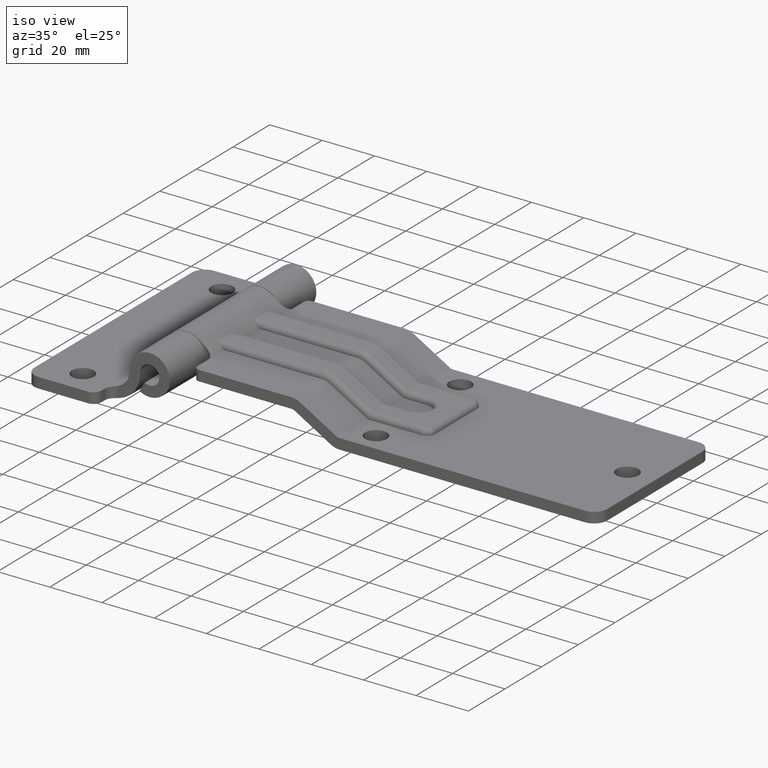
[diagram: clean part render]
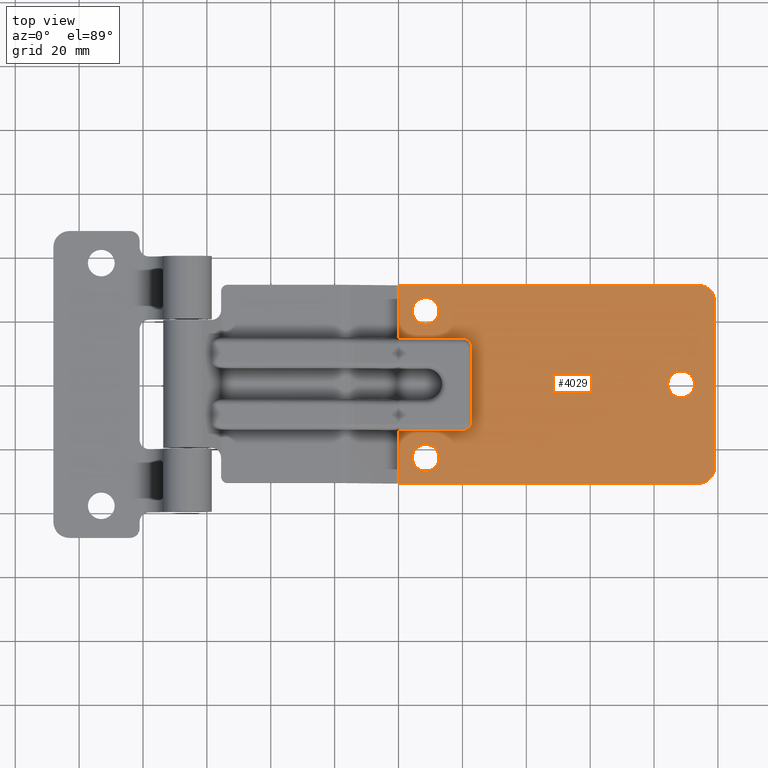
[diagram: tour spotlight — one face highlighted and labeled with its STEP entity id]
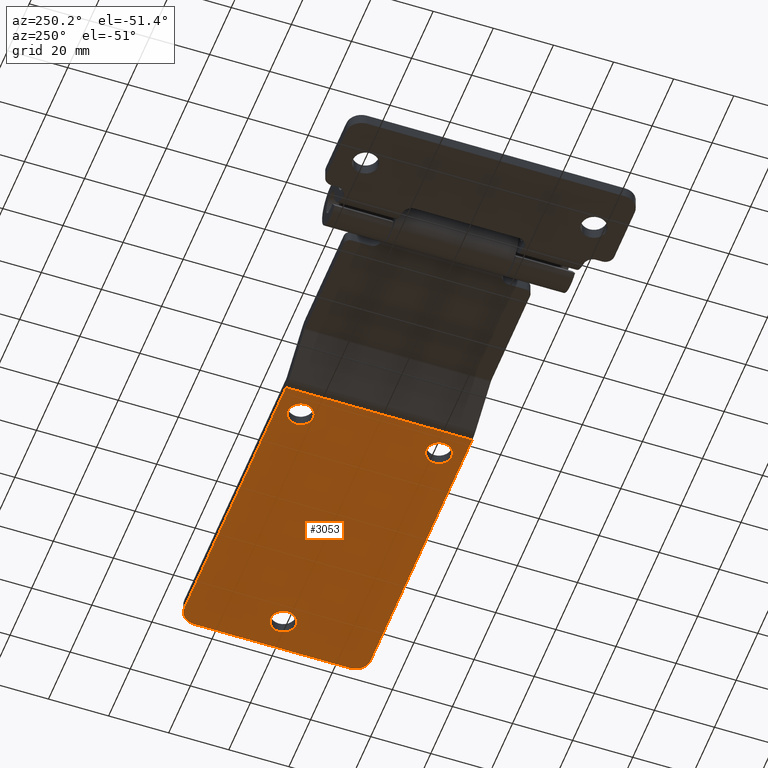
[diagram: tour spotlight — one face highlighted and labeled with its STEP entity id]
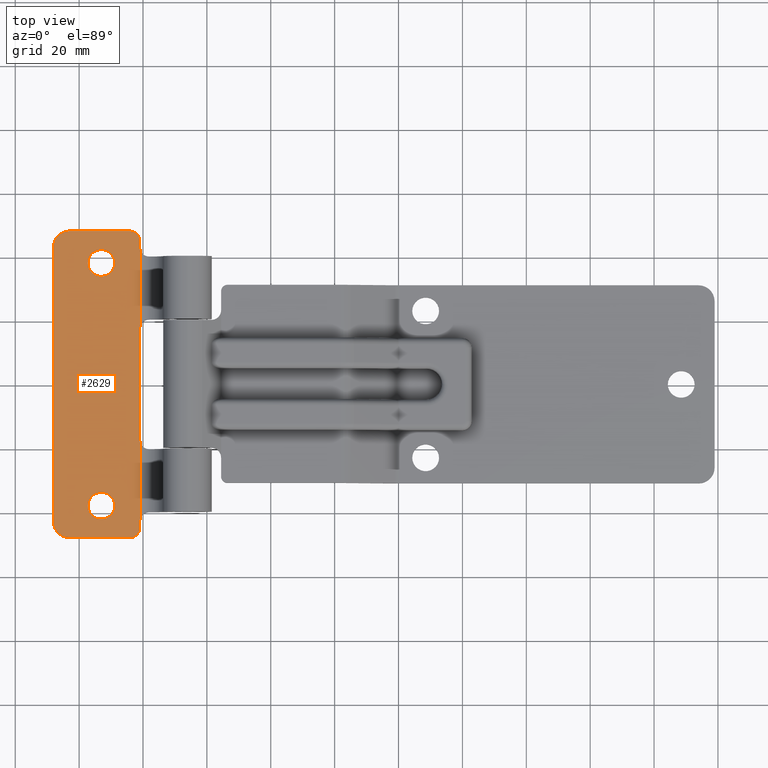
[diagram: tour spotlight — one face highlighted and labeled with its STEP entity id]
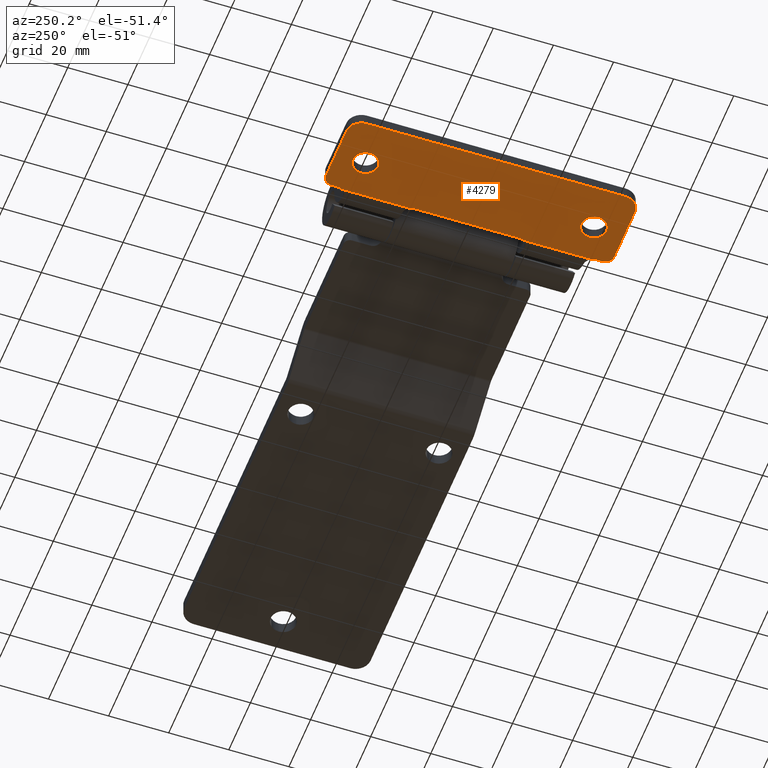
[diagram: tour spotlight — one face highlighted and labeled with its STEP entity id]
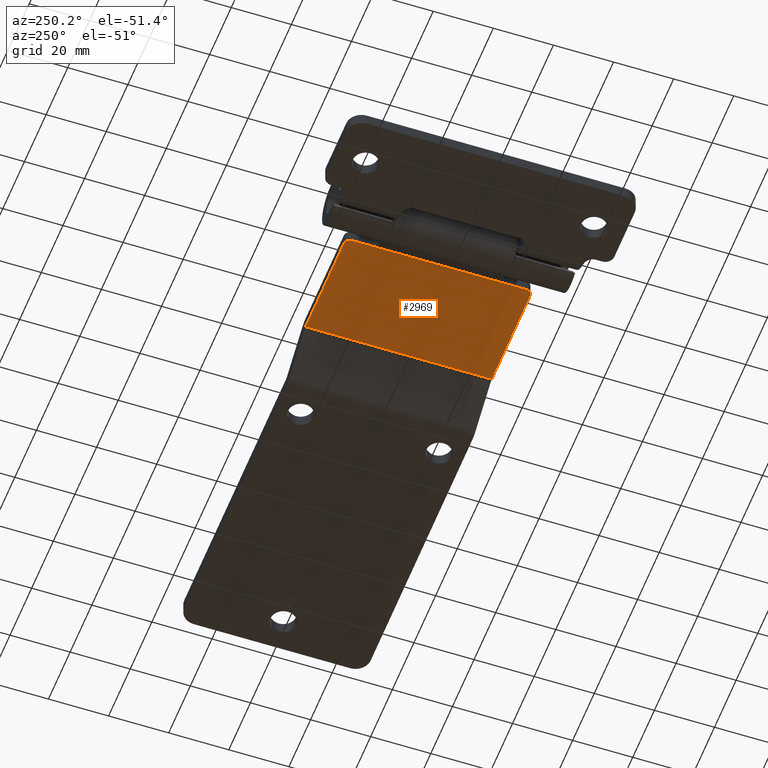
[diagram: tour spotlight — one face highlighted and labeled with its STEP entity id]
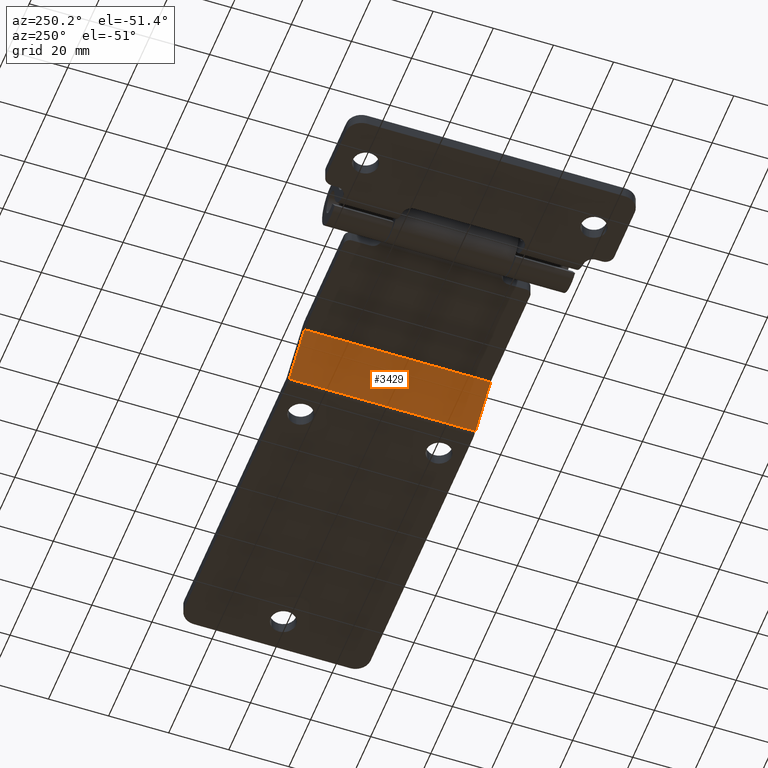
[diagram: tour spotlight — one face highlighted and labeled with its STEP entity id]
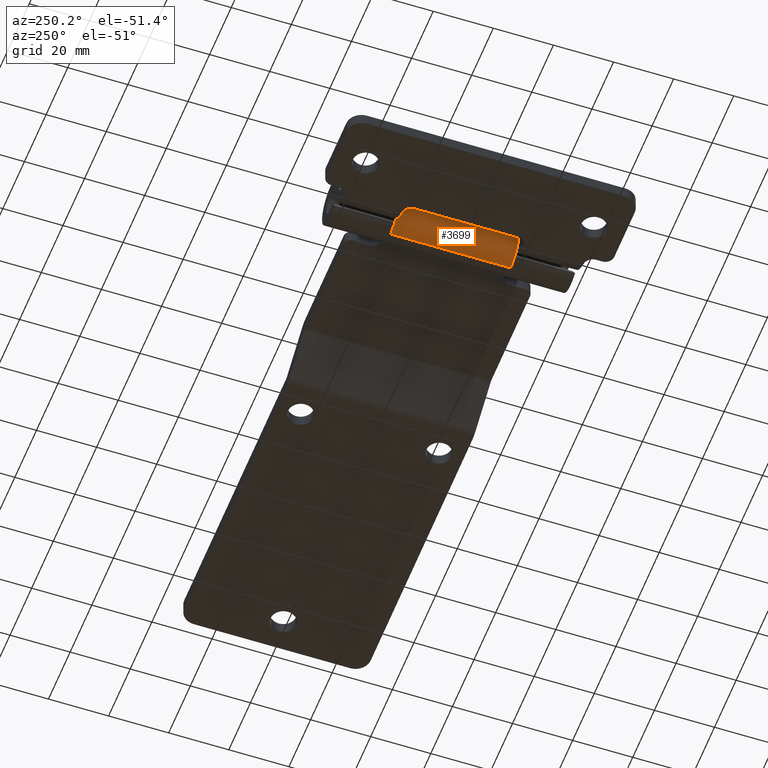
[diagram: tour spotlight — one face highlighted and labeled with its STEP entity id]
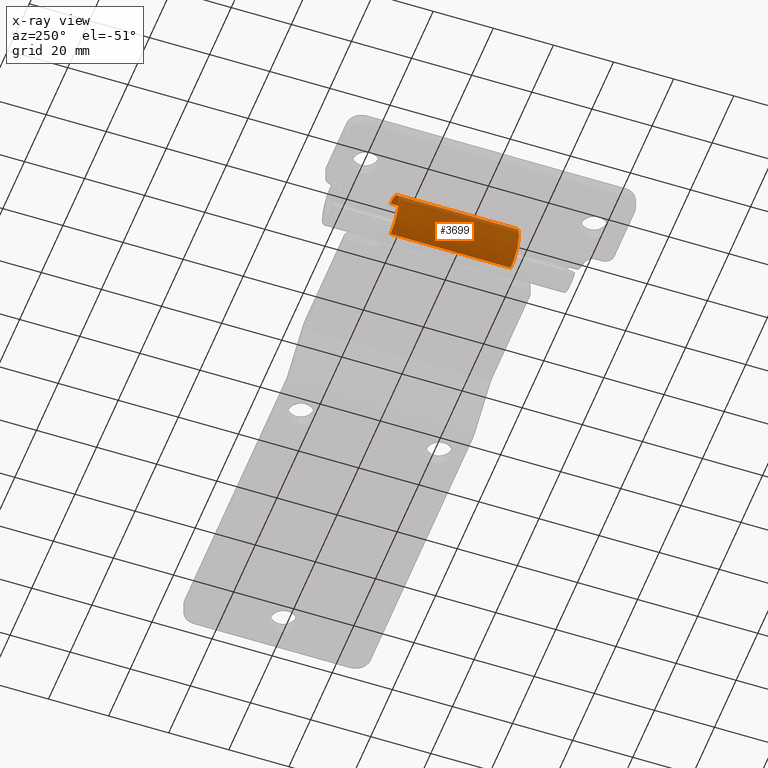
[diagram: x-ray of the same camera — body ghosted, this tour face saturated]
A machine part: a face-by-face anatomy tour. The part has 135 B-rep faces; the first image is the clean iso view, then the 7 largest visible faces are spotlighted one at a time (largest first), each with its STEP entity span.

Face 1 — top view, entity #4029. In plain terms, the highlighted planar face has unit normal (0, 0, 1).
Definition (entity closure, byte-faithful):
#11 = VERTEX_POINT ( 'NONE', #3696 ) ;
#24 = CARTESIAN_POINT ( 'NONE',  ( 149.5000000000000000, 31.00000000000000000, -5.200000000000001100 ) ) ;
#50 = LINE ( 'NONE', #4456, #1364 ) ;
#65 = DIRECTION ( 'NONE',  ( 1.000000000000000000, 0.0000000000000000000, 0.0000000000000000000 ) ) ;
#70 = DIRECTION ( 'NONE',  ( 0.0000000000000000000, 0.0000000000000000000, 1.000000000000000000 ) ) ;
#71 = CARTESIAN_POINT ( 'NONE',  ( 149.5000000000000000, 26.00000000000000000, -5.200000000000001100 ) ) ;
#105 = VERTEX_POINT ( 'NONE', #3254 ) ;
#154 = EDGE_LOOP ( 'NONE', ( #455, #1419 ) ) ;
#175 = VERTEX_POINT ( 'NONE', #1370 ) ;
#239 = ORIENTED_EDGE ( 'NONE', *, *, #2274, .T. ) ;
#244 = CIRCLE ( 'NONE', #881, 3.000000000000002700 ) ;
#267 = CARTESIAN_POINT ( 'NONE',  ( 78.49999999999998600, -11.49999999999999500, -5.200000000000002800 ) ) ;
#275 = DIRECTION ( 'NONE',  ( 1.000000000000000000, 0.0000000000000000000, 0.0000000000000000000 ) ) ;
#276 = LINE ( 'NONE', #2134, #3191 ) ;
#278 = DIRECTION ( 'NONE',  ( -0.0000000000000000000, -0.0000000000000000000, 1.000000000000000000 ) ) ;
#281 = CARTESIAN_POINT ( 'NONE',  ( 144.0425625842203800, 0.0000000000000000000, -5.200000000000001100 ) ) ;
#455 = ORIENTED_EDGE ( 'NONE', *, *, #3670, .F. ) ;
#461 = EDGE_CURVE ( 'NONE', #2753, #1929, #4294, .T. ) ;
#511 = LINE ( 'NONE', #1026, #3173 ) ;
#527 = AXIS2_PLACEMENT_3D ( 'NONE', #4070, #4068, #4065 ) ;
#534 = AXIS2_PLACEMENT_3D ( 'NONE', #4242, #4241, #4232 ) ;
#542 = VERTEX_POINT ( 'NONE', #2082 ) ;
#602 = ORIENTED_EDGE ( 'NONE', *, *, #3118, .T. ) ;
#614 = LINE ( 'NONE', #4606, #1351 ) ;
#650 = AXIS2_PLACEMENT_3D ( 'NONE', #71, #70, #65 ) ;
#669 = ORIENTED_EDGE ( 'NONE', *, *, #2365, .T. ) ;
#720 = DIRECTION ( 'NONE',  ( -0.0000000000000000000, -1.000000000000000000, -0.0000000000000000000 ) ) ;
#803 = DIRECTION ( 'NONE',  ( 1.000000000000000000, 0.0000000000000000000, 0.0000000000000000000 ) ) ;
#805 = DIRECTION ( 'NONE',  ( -0.0000000000000000000, -0.0000000000000000000, 1.000000000000000000 ) ) ;
#810 = CARTESIAN_POINT ( 'NONE',  ( 64.04256258422036300, 23.00000000000000000, -5.200000000000001100 ) ) ;
#881 = AXIS2_PLACEMENT_3D ( 'NONE', #1541, #1536, #1526 ) ;
#910 = CARTESIAN_POINT ( 'NONE',  ( 59.84256258422036700, -23.00000000000000000, -5.200000000000001100 ) ) ;
#1001 = DIRECTION ( 'NONE',  ( 0.0000000000000000000, 1.000000000000000000, 0.0000000000000000000 ) ) ;
#1026 = CARTESIAN_POINT ( 'NONE',  ( 55.54256258422036300, -31.00000000000000000, -5.200000000000001100 ) ) ;
#1065 = DIRECTION ( 'NONE',  ( 1.000000000000000000, 0.0000000000000000000, 0.0000000000000000000 ) ) ;
#1070 = DIRECTION ( 'NONE',  ( 0.0000000000000000000, 0.0000000000000000000, 1.000000000000000000 ) ) ;
#1072 = CARTESIAN_POINT ( 'NONE',  ( 149.5000000000000000, -25.99999999999999600, -5.200000000000001100 ) ) ;
#1088 = DIRECTION ( 'NONE',  ( 1.000000000000000000, 0.0000000000000000000, 0.0000000000000000000 ) ) ;
#1112 = CARTESIAN_POINT ( 'NONE',  ( 53.93486742963362000, 31.00000000000000000, -5.200000000000001100 ) ) ;
#1133 = CIRCLE ( 'NONE', #527, 4.199999999999995700 ) ;
#1172 = ORIENTED_EDGE ( 'NONE', *, *, #3468, .F. ) ;
#1180 = VERTEX_POINT ( 'NONE', #3097 ) ;
#1182 = DIRECTION ( 'NONE',  ( 1.000000000000000000, 0.0000000000000000000, -0.0000000000000000000 ) ) ;
#1185 = CARTESIAN_POINT ( 'NONE',  ( 55.54256258422036300, 14.50000000000000000, -5.200000000000001100 ) ) ;
#1186 = CARTESIAN_POINT ( 'NONE',  ( 78.49999999999998600, 11.50000000000000000, -5.200000000000002800 ) ) ;
#1351 = VECTOR ( 'NONE', #4519, 1000.000000000000000 ) ;
#1364 = VECTOR ( 'NONE', #4451, 1000.000000000000000 ) ;
#1370 = CARTESIAN_POINT ( 'NONE',  ( 149.5000000000000000, -31.00000000000000000, -5.200000000000001100 ) ) ;
#1395 = ORIENTED_EDGE ( 'NONE', *, *, #4095, .F. ) ;
#1419 = ORIENTED_EDGE ( 'NONE', *, *, #3312, .F. ) ;
#1456 = EDGE_CURVE ( 'NONE', #1927, #3674, #276, .T. ) ;
#1475 = VECTOR ( 'NONE', #1088, 1000.000000000000000 ) ;
#1502 = VECTOR ( 'NONE', #2107, 1000.000000000000000 ) ;
#1521 = CARTESIAN_POINT ( 'NONE',  ( 139.8425625842203600, 5.143516556418894800E-016, -5.200000000000001100 ) ) ;
#1526 = DIRECTION ( 'NONE',  ( 1.000000000000000000, 0.0000000000000000000, 0.0000000000000000000 ) ) ;
#1536 = DIRECTION ( 'NONE',  ( -0.0000000000000000000, -0.0000000000000000000, -1.000000000000000000 ) ) ;
#1541 = CARTESIAN_POINT ( 'NONE',  ( 75.49999999999998600, -11.50000000000000200, -5.200000000000001100 ) ) ;
#1575 = CARTESIAN_POINT ( 'NONE',  ( 64.04256258422036300, -23.00000000000000000, -5.200000000000001100 ) ) ;
#1694 = ORIENTED_EDGE ( 'NONE', *, *, #3446, .T. ) ;
#1700 = DIRECTION ( 'NONE',  ( 1.000000000000000000, 0.0000000000000000000, 0.0000000000000000000 ) ) ;
#1704 = DIRECTION ( 'NONE',  ( -0.0000000000000000000, -0.0000000000000000000, 1.000000000000000000 ) ) ;
#1706 = CARTESIAN_POINT ( 'NONE',  ( 144.0425625842203800, 0.0000000000000000000, -5.200000000000001100 ) ) ;
#1786 = AXIS2_PLACEMENT_3D ( 'NONE', #1575, #2494, #3445 ) ;
#1797 = ORIENTED_EDGE ( 'NONE', *, *, #1973, .F. ) ;
#1815 = EDGE_CURVE ( 'NONE', #3674, #2568, #244, .T. ) ;
#1828 = AXIS2_PLACEMENT_3D ( 'NONE', #3206, #3311, #1182 ) ;
#1835 = VERTEX_POINT ( 'NONE', #1521 ) ;
#1860 = CIRCLE ( 'NONE', #1786, 4.199999999999995700 ) ;
#1876 = LINE ( 'NONE', #2078, #1502 ) ;
#1927 = VERTEX_POINT ( 'NONE', #1186 ) ;
#1929 = VERTEX_POINT ( 'NONE', #1185 ) ;
#1973 = EDGE_CURVE ( 'NONE', #11, #3780, #2076, .T. ) ;
#2036 = VERTEX_POINT ( 'NONE', #910 ) ;
#2064 = CIRCLE ( 'NONE', #650, 5.000000000000004400 ) ;
#2076 = LINE ( 'NONE', #1112, #1475 ) ;
#2078 = CARTESIAN_POINT ( 'NONE',  ( 55.54256258422036300, -14.50000000000000000, -5.200000000000001100 ) ) ;
#2082 = CARTESIAN_POINT ( 'NONE',  ( 59.84256258422036700, 23.00000000000000000, -5.200000000000001100 ) ) ;
#2091 = VECTOR ( 'NONE', #3529, 1000.000000000000000 ) ;
#2107 = DIRECTION ( 'NONE',  ( -1.000000000000000000, -0.0000000000000000000, 7.556259196352890800E-017 ) ) ;
#2134 = CARTESIAN_POINT ( 'NONE',  ( 78.49999999999998600, 14.50000000000000000, -5.200000000000002800 ) ) ;
#2135 = DIRECTION ( 'NONE',  ( 0.0000000000000000000, 1.000000000000000000, 0.0000000000000000000 ) ) ;
#2209 = FACE_OUTER_BOUND ( 'NONE', #3159, .T. ) ;
#2216 = CARTESIAN_POINT ( 'NONE',  ( 55.54256258422036300, -31.00000000000000000, -5.200000000000001100 ) ) ;
#2244 = ORIENTED_EDGE ( 'NONE', *, *, #2584, .F. ) ;
#2274 = EDGE_CURVE ( 'NONE', #1180, #3780, #2064, .T. ) ;
#2277 = FACE_BOUND ( 'NONE', #154, .T. ) ;
#2304 = FACE_BOUND ( 'NONE', #3672, .T. ) ;
#2315 = FACE_BOUND ( 'NONE', #2592, .T. ) ;
#2316 = ORIENTED_EDGE ( 'NONE', *, *, #2337, .F. ) ;
#2322 = VERTEX_POINT ( 'NONE', #4553 ) ;
#2337 = EDGE_CURVE ( 'NONE', #1180, #2817, #614, .T. ) ;
#2365 = EDGE_CURVE ( 'NONE', #3195, #175, #50, .T. ) ;
#2369 = ORIENTED_EDGE ( 'NONE', *, *, #3860, .F. ) ;
#2386 = CARTESIAN_POINT ( 'NONE',  ( 55.54256258422036300, -14.50000000000000000, -5.200000000000001100 ) ) ;
#2412 = DIRECTION ( 'NONE',  ( 1.000000000000000000, 0.0000000000000000000, 0.0000000000000000000 ) ) ;
#2419 = DIRECTION ( 'NONE',  ( -0.0000000000000000000, -0.0000000000000000000, -1.000000000000000000 ) ) ;
#2422 = CARTESIAN_POINT ( 'NONE',  ( 75.49999999999998600, 11.50000000000000000, -5.200000000000001100 ) ) ;
#2466 = EDGE_CURVE ( 'NONE', #105, #542, #3270, .T. ) ;
#2486 = CIRCLE ( 'NONE', #3626, 5.000000000000004400 ) ;
#2494 = DIRECTION ( 'NONE',  ( -0.0000000000000000000, -0.0000000000000000000, 1.000000000000000000 ) ) ;
#2568 = VERTEX_POINT ( 'NONE', #4093 ) ;
#2584 = EDGE_CURVE ( 'NONE', #2322, #2036, #1133, .T. ) ;
#2592 = EDGE_LOOP ( 'NONE', ( #3492, #4594 ) ) ;
#2656 = CIRCLE ( 'NONE', #2868, 4.200000000000009100 ) ;
#2753 = VERTEX_POINT ( 'NONE', #3140 ) ;
#2817 = VERTEX_POINT ( 'NONE', #2909 ) ;
#2868 = AXIS2_PLACEMENT_3D ( 'NONE', #281, #278, #275 ) ;
#2909 = CARTESIAN_POINT ( 'NONE',  ( 154.5000000000000000, -25.99999999999999600, -5.200000000000001100 ) ) ;
#3071 = VERTEX_POINT ( 'NONE', #4004 ) ;
#3097 = CARTESIAN_POINT ( 'NONE',  ( 154.5000000000000000, 26.00000000000000000, -5.200000000000001100 ) ) ;
#3118 = EDGE_CURVE ( 'NONE', #2753, #1927, #4276, .T. ) ;
#3127 = VERTEX_POINT ( 'NONE', #2386 ) ;
#3137 = ORIENTED_EDGE ( 'NONE', *, *, #4583, .T. ) ;
#3140 = CARTESIAN_POINT ( 'NONE',  ( 75.49999999999998600, 14.50000000000000000, -5.200000000000002800 ) ) ;
#3159 = EDGE_LOOP ( 'NONE', ( #3387, #602, #4433, #3864, #3137, #2369, #669, #1694, #2316, #239, #1797, #1172 ) ) ;
#3173 = VECTOR ( 'NONE', #1001, 1000.000000000000000 ) ;
#3191 = VECTOR ( 'NONE', #720, 1000.000000000000000 ) ;
#3195 = VERTEX_POINT ( 'NONE', #2216 ) ;
#3206 = CARTESIAN_POINT ( 'NONE',  ( 53.93486742963362000, -31.00000000000000000, -5.200000000000001100 ) ) ;
#3254 = CARTESIAN_POINT ( 'NONE',  ( 68.24256258422036600, 23.00000000000000000, -5.200000000000001100 ) ) ;
#3270 = CIRCLE ( 'NONE', #534, 4.199999999999995700 ) ;
#3311 = DIRECTION ( 'NONE',  ( 0.0000000000000000000, 0.0000000000000000000, 1.000000000000000000 ) ) ;
#3312 = EDGE_CURVE ( 'NONE', #1835, #3071, #4429, .T. ) ;
#3387 = ORIENTED_EDGE ( 'NONE', *, *, #461, .F. ) ;
#3445 = DIRECTION ( 'NONE',  ( 1.000000000000000000, 0.0000000000000000000, 0.0000000000000000000 ) ) ;
#3446 = EDGE_CURVE ( 'NONE', #175, #2817, #2486, .T. ) ;
#3468 = EDGE_CURVE ( 'NONE', #1929, #11, #511, .T. ) ;
#3492 = ORIENTED_EDGE ( 'NONE', *, *, #2466, .F. ) ;
#3493 = CARTESIAN_POINT ( 'NONE',  ( 55.54256258422036300, -31.00000000000000000, -5.200000000000001100 ) ) ;
#3512 = EDGE_CURVE ( 'NONE', #542, #105, #3759, .T. ) ;
#3529 = DIRECTION ( 'NONE',  ( -1.000000000000000000, -0.0000000000000000000, 7.556259196352890800E-017 ) ) ;
#3531 = AXIS2_PLACEMENT_3D ( 'NONE', #810, #805, #803 ) ;
#3589 = PLANE ( 'NONE',  #1828 ) ;
#3626 = AXIS2_PLACEMENT_3D ( 'NONE', #1072, #1070, #1065 ) ;
#3670 = EDGE_CURVE ( 'NONE', #3071, #1835, #2656, .T. ) ;
#3672 = EDGE_LOOP ( 'NONE', ( #2244, #1395 ) ) ;
#3674 = VERTEX_POINT ( 'NONE', #267 ) ;
#3696 = CARTESIAN_POINT ( 'NONE',  ( 55.54256258422036300, 31.00000000000000000, -5.200000000000001100 ) ) ;
#3759 = CIRCLE ( 'NONE', #3531, 4.199999999999995700 ) ;
#3780 = VERTEX_POINT ( 'NONE', #24 ) ;
#3850 = AXIS2_PLACEMENT_3D ( 'NONE', #1706, #1704, #1700 ) ;
#3860 = EDGE_CURVE ( 'NONE', #3195, #3127, #4286, .T. ) ;
#3864 = ORIENTED_EDGE ( 'NONE', *, *, #1815, .T. ) ;
#3942 = VECTOR ( 'NONE', #2135, 1000.000000000000000 ) ;
#3955 = CARTESIAN_POINT ( 'NONE',  ( 55.54256258422036300, 14.50000000000000000, -5.200000000000001100 ) ) ;
#4004 = CARTESIAN_POINT ( 'NONE',  ( 148.2425625842203900, 0.0000000000000000000, -5.200000000000001100 ) ) ;
#4029 = ADVANCED_FACE ( 'NONE', ( #2209, #2304, #2315, #2277 ), #3589, .T. ) ;
#4065 = DIRECTION ( 'NONE',  ( 1.000000000000000000, 0.0000000000000000000, 0.0000000000000000000 ) ) ;
#4068 = DIRECTION ( 'NONE',  ( -0.0000000000000000000, -0.0000000000000000000, 1.000000000000000000 ) ) ;
#4070 = CARTESIAN_POINT ( 'NONE',  ( 64.04256258422036300, -23.00000000000000000, -5.200000000000001100 ) ) ;
#4093 = CARTESIAN_POINT ( 'NONE',  ( 75.49999999999998600, -14.50000000000000000, -5.200000000000002800 ) ) ;
#4095 = EDGE_CURVE ( 'NONE', #2036, #2322, #1860, .T. ) ;
#4232 = DIRECTION ( 'NONE',  ( 1.000000000000000000, 0.0000000000000000000, 0.0000000000000000000 ) ) ;
#4241 = DIRECTION ( 'NONE',  ( -0.0000000000000000000, -0.0000000000000000000, 1.000000000000000000 ) ) ;
#4242 = CARTESIAN_POINT ( 'NONE',  ( 64.04256258422036300, 23.00000000000000000, -5.200000000000001100 ) ) ;
#4276 = CIRCLE ( 'NONE', #4284, 3.000000000000002700 ) ;
#4284 = AXIS2_PLACEMENT_3D ( 'NONE', #2422, #2419, #2412 ) ;
#4286 = LINE ( 'NONE', #3493, #3942 ) ;
#4294 = LINE ( 'NONE', #3955, #2091 ) ;
#4429 = CIRCLE ( 'NONE', #3850, 4.200000000000009100 ) ;
#4433 = ORIENTED_EDGE ( 'NONE', *, *, #1456, .T. ) ;
#4451 = DIRECTION ( 'NONE',  ( 1.000000000000000000, 0.0000000000000000000, 0.0000000000000000000 ) ) ;
#4456 = CARTESIAN_POINT ( 'NONE',  ( 53.93486742963362000, -31.00000000000000000, -5.200000000000001100 ) ) ;
#4519 = DIRECTION ( 'NONE',  ( 0.0000000000000000000, -1.000000000000000000, 0.0000000000000000000 ) ) ;
#4553 = CARTESIAN_POINT ( 'NONE',  ( 68.24256258422036600, -23.00000000000000000, -5.200000000000001100 ) ) ;
#4583 = EDGE_CURVE ( 'NONE', #2568, #3127, #1876, .T. ) ;
#4594 = ORIENTED_EDGE ( 'NONE', *, *, #3512, .F. ) ;
#4606 = CARTESIAN_POINT ( 'NONE',  ( 154.5000000000000000, 31.00000000000000000, -5.200000000000001100 ) ) ;

Face 2 — auxiliary view, entity #3053. In plain terms, the highlighted planar face has unit normal (0, 0, 1).
Definition (entity closure, byte-faithful):
#17 = ORIENTED_EDGE ( 'NONE', *, *, #3283, .T. ) ;
#153 = CARTESIAN_POINT ( 'NONE',  ( 59.84256258422036700, -23.00000000000000000, -9.200000000000001100 ) ) ;
#335 = DIRECTION ( 'NONE',  ( 1.000000000000000000, 0.0000000000000000000, 0.0000000000000000000 ) ) ;
#340 = DIRECTION ( 'NONE',  ( 0.0000000000000000000, 0.0000000000000000000, 1.000000000000000000 ) ) ;
#345 = CARTESIAN_POINT ( 'NONE',  ( 144.0425625842203800, 0.0000000000000000000, -9.200000000000001100 ) ) ;
#352 = EDGE_CURVE ( 'NONE', #1302, #706, #4325, .T. ) ;
#357 = EDGE_CURVE ( 'NONE', #706, #1302, #4253, .T. ) ;
#371 = CIRCLE ( 'NONE', #3290, 5.000000000000004400 ) ;
#501 = ORIENTED_EDGE ( 'NONE', *, *, #2353, .F. ) ;
#601 = DIRECTION ( 'NONE',  ( 1.000000000000000000, 0.0000000000000000000, 0.0000000000000000000 ) ) ;
#607 = DIRECTION ( 'NONE',  ( -0.0000000000000000000, -0.0000000000000000000, -1.000000000000000000 ) ) ;
#609 = CARTESIAN_POINT ( 'NONE',  ( 149.5000000000000000, -25.99999999999999600, -9.200000000000001100 ) ) ;
#691 = ORIENTED_EDGE ( 'NONE', *, *, #3566, .T. ) ;
#705 = DIRECTION ( 'NONE',  ( 1.000000000000000000, 0.0000000000000000000, 0.0000000000000000000 ) ) ;
#706 = VERTEX_POINT ( 'NONE', #153 ) ;
#709 = AXIS2_PLACEMENT_3D ( 'NONE', #345, #340, #335 ) ;
#713 = DIRECTION ( 'NONE',  ( 0.0000000000000000000, 0.0000000000000000000, 1.000000000000000000 ) ) ;
#718 = CARTESIAN_POINT ( 'NONE',  ( 64.04256258422036300, 23.00000000000000000, -9.200000000000001100 ) ) ;
#888 = FACE_BOUND ( 'NONE', #2058, .T. ) ;
#938 = CARTESIAN_POINT ( 'NONE',  ( 59.84256258422036700, 23.00000000000000000, -9.200000000000001100 ) ) ;
#977 = AXIS2_PLACEMENT_3D ( 'NONE', #1880, #1873, #1871 ) ;
#1253 = ORIENTED_EDGE ( 'NONE', *, *, #4527, .T. ) ;
#1256 = ORIENTED_EDGE ( 'NONE', *, *, #2163, .T. ) ;
#1285 = CIRCLE ( 'NONE', #3444, 4.199999999999995700 ) ;
#1299 = AXIS2_PLACEMENT_3D ( 'NONE', #3487, #3172, #3359 ) ;
#1302 = VERTEX_POINT ( 'NONE', #3090 ) ;
#1307 = AXIS2_PLACEMENT_3D ( 'NONE', #3883, #3187, #3667 ) ;
#1445 = LINE ( 'NONE', #4507, #1472 ) ;
#1469 = CIRCLE ( 'NONE', #1532, 4.200000000000009100 ) ;
#1472 = VECTOR ( 'NONE', #4508, 1000.000000000000000 ) ;
#1532 = AXIS2_PLACEMENT_3D ( 'NONE', #4411, #4364, #4372 ) ;
#1672 = EDGE_CURVE ( 'NONE', #1709, #3488, #2915, .T. ) ;
#1683 = CARTESIAN_POINT ( 'NONE',  ( 55.54256258422036300, -31.00000000000000000, -9.200000000000001100 ) ) ;
#1709 = VERTEX_POINT ( 'NONE', #1822 ) ;
#1754 = VERTEX_POINT ( 'NONE', #1683 ) ;
#1822 = CARTESIAN_POINT ( 'NONE',  ( 68.24256258422036600, 23.00000000000000000, -9.200000000000001100 ) ) ;
#1831 = DIRECTION ( 'NONE',  ( 1.000000000000000000, 0.0000000000000000000, 0.0000000000000000000 ) ) ;
#1832 = DIRECTION ( 'NONE',  ( -0.0000000000000000000, -0.0000000000000000000, -1.000000000000000000 ) ) ;
#1838 = CARTESIAN_POINT ( 'NONE',  ( 149.5000000000000000, 26.00000000000000000, -9.200000000000001100 ) ) ;
#1871 = DIRECTION ( 'NONE',  ( 1.000000000000000000, 0.0000000000000000000, 0.0000000000000000000 ) ) ;
#1873 = DIRECTION ( 'NONE',  ( 0.0000000000000000000, 0.0000000000000000000, 1.000000000000000000 ) ) ;
#1877 = ORIENTED_EDGE ( 'NONE', *, *, #1672, .T. ) ;
#1880 = CARTESIAN_POINT ( 'NONE',  ( 64.04256258422036300, 23.00000000000000000, -9.200000000000001100 ) ) ;
#1931 = LINE ( 'NONE', #2378, #2214 ) ;
#2050 = CIRCLE ( 'NONE', #3897, 5.000000000000004400 ) ;
#2058 = EDGE_LOOP ( 'NONE', ( #1877, #3154 ) ) ;
#2060 = CARTESIAN_POINT ( 'NONE',  ( 149.5000000000000000, -31.00000000000000000, -9.200000000000001100 ) ) ;
#2163 = EDGE_CURVE ( 'NONE', #2452, #4150, #3917, .T. ) ;
#2214 = VECTOR ( 'NONE', #2768, 1000.000000000000000 ) ;
#2223 = EDGE_LOOP ( 'NONE', ( #1256, #3269 ) ) ;
#2353 = EDGE_CURVE ( 'NONE', #3832, #2575, #1445, .T. ) ;
#2378 = CARTESIAN_POINT ( 'NONE',  ( 55.54256258422036300, -31.00000000000000000, -9.200000000000001100 ) ) ;
#2396 = EDGE_CURVE ( 'NONE', #1754, #4598, #4468, .T. ) ;
#2408 = EDGE_CURVE ( 'NONE', #3845, #2510, #2447, .T. ) ;
#2447 = LINE ( 'NONE', #4423, #3849 ) ;
#2452 = VERTEX_POINT ( 'NONE', #4285 ) ;
#2510 = VERTEX_POINT ( 'NONE', #4184 ) ;
#2575 = VERTEX_POINT ( 'NONE', #4123 ) ;
#2715 = ORIENTED_EDGE ( 'NONE', *, *, #2396, .F. ) ;
#2768 = DIRECTION ( 'NONE',  ( 0.0000000000000000000, 1.000000000000000000, 0.0000000000000000000 ) ) ;
#2915 = CIRCLE ( 'NONE', #977, 4.199999999999995700 ) ;
#3027 = ORIENTED_EDGE ( 'NONE', *, *, #352, .T. ) ;
#3053 = ADVANCED_FACE ( 'NONE', ( #4462, #888, #4169, #4131 ), #4576, .F. ) ;
#3090 = CARTESIAN_POINT ( 'NONE',  ( 68.24256258422036600, -23.00000000000000000, -9.200000000000001100 ) ) ;
#3154 = ORIENTED_EDGE ( 'NONE', *, *, #3539, .T. ) ;
#3170 = DIRECTION ( 'NONE',  ( 0.0000000000000000000, 0.0000000000000000000, 1.000000000000000000 ) ) ;
#3172 = DIRECTION ( 'NONE',  ( 0.0000000000000000000, 0.0000000000000000000, 1.000000000000000000 ) ) ;
#3187 = DIRECTION ( 'NONE',  ( 0.0000000000000000000, 0.0000000000000000000, 1.000000000000000000 ) ) ;
#3269 = ORIENTED_EDGE ( 'NONE', *, *, #4162, .T. ) ;
#3283 = EDGE_CURVE ( 'NONE', #2510, #2575, #2050, .T. ) ;
#3290 = AXIS2_PLACEMENT_3D ( 'NONE', #609, #607, #601 ) ;
#3292 = EDGE_LOOP ( 'NONE', ( #3027, #4042 ) ) ;
#3359 = DIRECTION ( 'NONE',  ( 1.000000000000000000, 0.0000000000000000000, 0.0000000000000000000 ) ) ;
#3444 = AXIS2_PLACEMENT_3D ( 'NONE', #718, #713, #705 ) ;
#3487 = CARTESIAN_POINT ( 'NONE',  ( 64.04256258422036300, -23.00000000000000000, -9.200000000000001100 ) ) ;
#3488 = VERTEX_POINT ( 'NONE', #938 ) ;
#3539 = EDGE_CURVE ( 'NONE', #3488, #1709, #1285, .T. ) ;
#3566 = EDGE_CURVE ( 'NONE', #3832, #4598, #371, .T. ) ;
#3611 = ORIENTED_EDGE ( 'NONE', *, *, #2408, .T. ) ;
#3667 = DIRECTION ( 'NONE',  ( 1.000000000000000000, 0.0000000000000000000, 0.0000000000000000000 ) ) ;
#3760 = CARTESIAN_POINT ( 'NONE',  ( 55.54256258422036300, 31.00000000000000000, -9.200000000000001100 ) ) ;
#3763 = EDGE_LOOP ( 'NONE', ( #501, #691, #2715, #1253, #3611, #17 ) ) ;
#3764 = CARTESIAN_POINT ( 'NONE',  ( 154.5000000000000000, -25.99999999999999600, -9.200000000000001100 ) ) ;
#3809 = CARTESIAN_POINT ( 'NONE',  ( 53.93486742963362000, -31.00000000000000000, -9.200000000000001100 ) ) ;
#3832 = VERTEX_POINT ( 'NONE', #3764 ) ;
#3845 = VERTEX_POINT ( 'NONE', #3760 ) ;
#3849 = VECTOR ( 'NONE', #4409, 1000.000000000000000 ) ;
#3883 = CARTESIAN_POINT ( 'NONE',  ( 64.04256258422036300, -23.00000000000000000, -9.200000000000001100 ) ) ;
#3897 = AXIS2_PLACEMENT_3D ( 'NONE', #1838, #1832, #1831 ) ;
#3917 = CIRCLE ( 'NONE', #709, 4.200000000000009100 ) ;
#4042 = ORIENTED_EDGE ( 'NONE', *, *, #357, .T. ) ;
#4123 = CARTESIAN_POINT ( 'NONE',  ( 154.5000000000000000, 25.99999999999999600, -9.200000000000001100 ) ) ;
#4124 = VECTOR ( 'NONE', #4421, 1000.000000000000000 ) ;
#4131 = FACE_OUTER_BOUND ( 'NONE', #3763, .T. ) ;
#4150 = VERTEX_POINT ( 'NONE', #4542 ) ;
#4162 = EDGE_CURVE ( 'NONE', #4150, #2452, #1469, .T. ) ;
#4169 = FACE_BOUND ( 'NONE', #2223, .T. ) ;
#4184 = CARTESIAN_POINT ( 'NONE',  ( 149.5000000000000000, 31.00000000000000000, -9.200000000000001100 ) ) ;
#4253 = CIRCLE ( 'NONE', #1299, 4.199999999999995700 ) ;
#4285 = CARTESIAN_POINT ( 'NONE',  ( 148.2425625842203900, 0.0000000000000000000, -9.200000000000001100 ) ) ;
#4325 = CIRCLE ( 'NONE', #1307, 4.199999999999995700 ) ;
#4351 = AXIS2_PLACEMENT_3D ( 'NONE', #3809, #3170, #4499 ) ;
#4364 = DIRECTION ( 'NONE',  ( 0.0000000000000000000, 0.0000000000000000000, 1.000000000000000000 ) ) ;
#4372 = DIRECTION ( 'NONE',  ( 1.000000000000000000, 0.0000000000000000000, 0.0000000000000000000 ) ) ;
#4409 = DIRECTION ( 'NONE',  ( 1.000000000000000000, 0.0000000000000000000, 0.0000000000000000000 ) ) ;
#4411 = CARTESIAN_POINT ( 'NONE',  ( 144.0425625842203800, 0.0000000000000000000, -9.200000000000001100 ) ) ;
#4421 = DIRECTION ( 'NONE',  ( 1.000000000000000000, 0.0000000000000000000, 0.0000000000000000000 ) ) ;
#4423 = CARTESIAN_POINT ( 'NONE',  ( 53.93486742963362000, 31.00000000000000000, -9.200000000000001100 ) ) ;
#4443 = CARTESIAN_POINT ( 'NONE',  ( 53.93486742963362000, -31.00000000000000000, -9.200000000000001100 ) ) ;
#4462 = FACE_BOUND ( 'NONE', #3292, .T. ) ;
#4468 = LINE ( 'NONE', #4443, #4124 ) ;
#4499 = DIRECTION ( 'NONE',  ( 1.000000000000000000, 0.0000000000000000000, -0.0000000000000000000 ) ) ;
#4507 = CARTESIAN_POINT ( 'NONE',  ( 154.5000000000000000, -31.00000000000000000, -9.200000000000001100 ) ) ;
#4508 = DIRECTION ( 'NONE',  ( 0.0000000000000000000, 1.000000000000000000, 0.0000000000000000000 ) ) ;
#4527 = EDGE_CURVE ( 'NONE', #1754, #3845, #1931, .T. ) ;
#4542 = CARTESIAN_POINT ( 'NONE',  ( 139.8425625842203600, 5.143516556418894800E-016, -9.200000000000001100 ) ) ;
#4576 = PLANE ( 'NONE',  #4351 ) ;
#4598 = VERTEX_POINT ( 'NONE', #2060 ) ;

Face 3 — top view, entity #2629. In plain terms, the highlighted planar face has unit normal (0, 0, 1).
Definition (entity closure, byte-faithful):
#28 = VERTEX_POINT ( 'NONE', #4302 ) ;
#72 = VERTEX_POINT ( 'NONE', #3389 ) ;
#73 = DIRECTION ( 'NONE',  ( 0.0000000000000000000, -1.000000000000000000, 0.0000000000000000000 ) ) ;
#85 = DIRECTION ( 'NONE',  ( 1.000000000000000000, 0.0000000000000000000, 0.0000000000000000000 ) ) ;
#89 = DIRECTION ( 'NONE',  ( 0.0000000000000000000, -0.0000000000000000000, -1.000000000000000000 ) ) ;
#92 = CARTESIAN_POINT ( 'NONE',  ( 16.49999999999999300, -43.00000000000000000, 4.000000000000000000 ) ) ;
#97 = VECTOR ( 'NONE', #73, 1000.000000000000000 ) ;
#116 = VECTOR ( 'NONE', #1048, 1000.000000000000000 ) ;
#122 = VECTOR ( 'NONE', #652, 1000.000000000000000 ) ;
#123 = ORIENTED_EDGE ( 'NONE', *, *, #1962, .T. ) ;
#133 = EDGE_LOOP ( 'NONE', ( #3954, #1895 ) ) ;
#146 = ORIENTED_EDGE ( 'NONE', *, *, #1586, .T. ) ;
#159 = CARTESIAN_POINT ( 'NONE',  ( 13.49999999999999600, -43.00000000000001400, 4.000000000000000000 ) ) ;
#256 = CARTESIAN_POINT ( 'NONE',  ( 13.85853490937468800, 77.66049561285177600, 3.999999999999998200 ) ) ;
#277 = CARTESIAN_POINT ( 'NONE',  ( 5.699999999999996600, 38.00000000000000000, 4.000000000000000000 ) ) ;
#290 = DIRECTION ( 'NONE',  ( 0.0000000000000000000, -1.000000000000000000, 0.0000000000000000000 ) ) ;
#373 = AXIS2_PLACEMENT_3D ( 'NONE', #3843, #3847, #3775 ) ;
#391 = DIRECTION ( 'NONE',  ( 1.000000000000000000, 0.0000000000000000000, 0.0000000000000000000 ) ) ;
#393 = ORIENTED_EDGE ( 'NONE', *, *, #1476, .T. ) ;
#395 = DIRECTION ( 'NONE',  ( -0.0000000000000000000, 0.0000000000000000000, 1.000000000000000000 ) ) ;
#396 = CARTESIAN_POINT ( 'NONE',  ( -8.500000000000003600, 43.00000000000000000, 4.000000000000000000 ) ) ;
#407 = CARTESIAN_POINT ( 'NONE',  ( 13.85853490937468300, -41.57779671811381700, 3.999999999999998200 ) ) ;
#413 = FACE_OUTER_BOUND ( 'NONE', #2911, .T. ) ;
#419 = VERTEX_POINT ( 'NONE', #2329 ) ;
#471 = DIRECTION ( 'NONE',  ( 1.000000000000000000, 0.0000000000000000000, 0.0000000000000000000 ) ) ;
#482 = DIRECTION ( 'NONE',  ( 0.0000000000000000000, 1.000000000000000000, -0.0000000000000000000 ) ) ;
#540 = ORIENTED_EDGE ( 'NONE', *, *, #1738, .T. ) ;
#562 = CARTESIAN_POINT ( 'NONE',  ( 13.50000000000000000, -48.00000000000000000, 4.000000000000000000 ) ) ;
#563 = DIRECTION ( 'NONE',  ( 1.000000000000000000, 0.0000000000000000000, 0.0000000000000000000 ) ) ;
#567 = ORIENTED_EDGE ( 'NONE', *, *, #1760, .T. ) ;
#571 = DIRECTION ( 'NONE',  ( 0.0000000000000000000, -0.0000000000000000000, -1.000000000000000000 ) ) ;
#592 = CARTESIAN_POINT ( 'NONE',  ( 16.49999999999999300, 43.00000000000000000, 4.000000000000000000 ) ) ;
#593 = CARTESIAN_POINT ( 'NONE',  ( -13.49999999999999300, -48.00000000000000000, 4.000000000000000000 ) ) ;
#613 = DIRECTION ( 'NONE',  ( -1.000000000000000000, 0.0000000000000000000, 0.0000000000000000000 ) ) ;
#615 = DIRECTION ( 'NONE',  ( 0.0000000000000000000, 0.0000000000000000000, 1.000000000000000000 ) ) ;
#620 = CARTESIAN_POINT ( 'NONE',  ( 1.500000000000003800, -38.00000000000000000, 4.000000000000000000 ) ) ;
#632 = DIRECTION ( 'NONE',  ( 1.000000000000000000, 0.0000000000000000000, 0.0000000000000000000 ) ) ;
#637 = DIRECTION ( 'NONE',  ( -0.0000000000000000000, 0.0000000000000000000, 1.000000000000000000 ) ) ;
#638 = CARTESIAN_POINT ( 'NONE',  ( 10.49999999999999600, -45.00000000000000000, 4.000000000000000000 ) ) ;
#645 = FACE_BOUND ( 'NONE', #133, .T. ) ;
#652 = DIRECTION ( 'NONE',  ( -1.000000000000000000, -0.0000000000000000000, -0.0000000000000000000 ) ) ;
#655 = AXIS2_PLACEMENT_3D ( 'NONE', #92, #89, #85 ) ;
#700 = VERTEX_POINT ( 'NONE', #3948 ) ;
#755 = AXIS2_PLACEMENT_3D ( 'NONE', #592, #571, #563 ) ;
#762 = AXIS2_PLACEMENT_3D ( 'NONE', #620, #615, #613 ) ;
#763 = AXIS2_PLACEMENT_3D ( 'NONE', #638, #637, #632 ) ;
#788 = ORIENTED_EDGE ( 'NONE', *, *, #1899, .T. ) ;
#829 = CIRCLE ( 'NONE', #879, 4.200000000000002000 ) ;
#830 = VECTOR ( 'NONE', #471, 1000.000000000000000 ) ;
#833 = CARTESIAN_POINT ( 'NONE',  ( 16.50000000000000000, 17.30000000000000100, 4.000000000000000000 ) ) ;
#854 = CARTESIAN_POINT ( 'NONE',  ( 13.85853490937468800, 18.72220328188617300, 3.999999999999998200 ) ) ;
#855 = AXIS2_PLACEMENT_3D ( 'NONE', #1224, #1216, #1214 ) ;
#879 = AXIS2_PLACEMENT_3D ( 'NONE', #1465, #1455, #1443 ) ;
#887 = AXIS2_PLACEMENT_3D ( 'NONE', #1640, #1633, #1632 ) ;
#890 = CARTESIAN_POINT ( 'NONE',  ( 13.49999999999999800, 45.00000000000000700, 4.000000000000000000 ) ) ;
#900 = CARTESIAN_POINT ( 'NONE',  ( 13.49999999999999800, -45.00000000000000000, 4.000000000000000000 ) ) ;
#901 = AXIS2_PLACEMENT_3D ( 'NONE', #396, #395, #391 ) ;
#927 = FACE_BOUND ( 'NONE', #1384, .T. ) ;
#945 = CARTESIAN_POINT ( 'NONE',  ( -13.50000000000000500, 48.00000000000000000, 4.000000000000000000 ) ) ;
#1045 = LINE ( 'NONE', #256, #3500 ) ;
#1047 = AXIS2_PLACEMENT_3D ( 'NONE', #2986, #2987, #3004 ) ;
#1048 = DIRECTION ( 'NONE',  ( 1.264902534566421700E-016, -1.000000000000000000, 0.0000000000000000000 ) ) ;
#1119 = AXIS2_PLACEMENT_3D ( 'NONE', #833, #1718, #1790 ) ;
#1122 = DIRECTION ( 'NONE',  ( -6.938893903907251100E-016, 1.000000000000000000, -0.0000000000000000000 ) ) ;
#1158 = DIRECTION ( 'NONE',  ( 6.938893903907251100E-016, 1.000000000000000000, 0.0000000000000000000 ) ) ;
#1162 = CARTESIAN_POINT ( 'NONE',  ( 13.50000000000000000, -47.99999999999997900, 4.000000000000000000 ) ) ;
#1166 = CIRCLE ( 'NONE', #655, 2.999999999999999100 ) ;
#1179 = CARTESIAN_POINT ( 'NONE',  ( 13.49999999999993400, -48.00000000000002100, 4.000000000000000000 ) ) ;
#1214 = DIRECTION ( 'NONE',  ( 1.000000000000000000, 0.0000000000000000000, 0.0000000000000000000 ) ) ;
#1216 = DIRECTION ( 'NONE',  ( -0.0000000000000000000, 0.0000000000000000000, 1.000000000000000000 ) ) ;
#1224 = CARTESIAN_POINT ( 'NONE',  ( 10.49999999999999600, 45.00000000000000000, 4.000000000000000000 ) ) ;
#1227 = CIRCLE ( 'NONE', #3747, 4.200000000000002000 ) ;
#1275 = CIRCLE ( 'NONE', #763, 3.000000000000000900 ) ;
#1279 = AXIS2_PLACEMENT_3D ( 'NONE', #2881, #2941, #2917 ) ;
#1280 = CARTESIAN_POINT ( 'NONE',  ( 10.49999999999999500, 48.00000000000000000, 4.000000000000000000 ) ) ;
#1354 = CIRCLE ( 'NONE', #762, 4.200000000000002800 ) ;
#1384 = EDGE_LOOP ( 'NONE', ( #4290, #3563 ) ) ;
#1443 = DIRECTION ( 'NONE',  ( 1.000000000000000000, 0.0000000000000000000, 0.0000000000000000000 ) ) ;
#1450 = DIRECTION ( 'NONE',  ( 1.000000000000000000, 0.0000000000000000000, 0.0000000000000000000 ) ) ;
#1453 = DIRECTION ( 'NONE',  ( 0.0000000000000000000, 0.0000000000000000000, 1.000000000000000000 ) ) ;
#1455 = DIRECTION ( 'NONE',  ( 0.0000000000000000000, 0.0000000000000000000, 1.000000000000000000 ) ) ;
#1460 = CARTESIAN_POINT ( 'NONE',  ( 1.499999999999994400, 38.00000000000000000, 4.000000000000000000 ) ) ;
#1465 = CARTESIAN_POINT ( 'NONE',  ( 1.499999999999994400, 38.00000000000000000, 4.000000000000000000 ) ) ;
#1471 = EDGE_CURVE ( 'NONE', #2634, #3509, #3725, .T. ) ;
#1476 = EDGE_CURVE ( 'NONE', #4274, #3509, #3641, .T. ) ;
#1492 = EDGE_CURVE ( 'NONE', #3424, #3100, #3570, .T. ) ;
#1545 = ORIENTED_EDGE ( 'NONE', *, *, #2128, .T. ) ;
#1582 = CIRCLE ( 'NONE', #887, 2.999999999999999100 ) ;
#1586 = EDGE_CURVE ( 'NONE', #28, #3264, #2940, .T. ) ;
#1587 = CARTESIAN_POINT ( 'NONE',  ( 13.49999999999999600, 43.00000000000001400, 4.000000000000000000 ) ) ;
#1603 = ORIENTED_EDGE ( 'NONE', *, *, #1939, .T. ) ;
#1623 = LINE ( 'NONE', #945, #116 ) ;
#1632 = DIRECTION ( 'NONE',  ( 1.000000000000000000, 2.312964634635743400E-015, 0.0000000000000000000 ) ) ;
#1633 = DIRECTION ( 'NONE',  ( 0.0000000000000000000, -0.0000000000000000000, -1.000000000000000000 ) ) ;
#1640 = CARTESIAN_POINT ( 'NONE',  ( 16.50000000000000000, -17.30000000000000100, 4.000000000000000000 ) ) ;
#1647 = CIRCLE ( 'NONE', #901, 5.000000000000000000 ) ;
#1718 = DIRECTION ( 'NONE',  ( 0.0000000000000000000, -0.0000000000000000000, -1.000000000000000000 ) ) ;
#1738 = EDGE_CURVE ( 'NONE', #3100, #3237, #1647, .T. ) ;
#1760 = EDGE_CURVE ( 'NONE', #700, #2692, #1582, .T. ) ;
#1790 = DIRECTION ( 'NONE',  ( 1.000000000000000000, 3.469446951953615400E-015, 0.0000000000000000000 ) ) ;
#1792 = CARTESIAN_POINT ( 'NONE',  ( 13.85853490937468800, 77.66049561285177600, 3.999999999999998200 ) ) ;
#1846 = ORIENTED_EDGE ( 'NONE', *, *, #1492, .T. ) ;
#1850 = EDGE_CURVE ( 'NONE', #2188, #2651, #829, .T. ) ;
#1895 = ORIENTED_EDGE ( 'NONE', *, *, #2106, .F. ) ;
#1899 = EDGE_CURVE ( 'NONE', #2048, #3424, #2610, .T. ) ;
#1939 = EDGE_CURVE ( 'NONE', #3349, #2048, #2161, .T. ) ;
#1962 = EDGE_CURVE ( 'NONE', #2040, #3705, #2780, .T. ) ;
#1970 = CARTESIAN_POINT ( 'NONE',  ( -8.499999999999992900, -48.00000000000000000, 4.000000000000000000 ) ) ;
#1976 = CIRCLE ( 'NONE', #1279, 4.200000000000002800 ) ;
#2015 = EDGE_CURVE ( 'NONE', #3237, #28, #1623, .T. ) ;
#2040 = VERTEX_POINT ( 'NONE', #900 ) ;
#2048 = VERTEX_POINT ( 'NONE', #890 ) ;
#2057 = CARTESIAN_POINT ( 'NONE',  ( -13.50000000000000500, 43.00000000000000000, 4.000000000000000000 ) ) ;
#2098 = EDGE_CURVE ( 'NONE', #419, #2040, #1275, .T. ) ;
#2106 = EDGE_CURVE ( 'NONE', #4014, #72, #1354, .T. ) ;
#2112 = EDGE_CURVE ( 'NONE', #2634, #3349, #4312, .T. ) ;
#2121 = EDGE_CURVE ( 'NONE', #2692, #4274, #2132, .T. ) ;
#2128 = EDGE_CURVE ( 'NONE', #3264, #419, #2678, .T. ) ;
#2132 = LINE ( 'NONE', #562, #4047 ) ;
#2161 = LINE ( 'NONE', #1179, #2254 ) ;
#2188 = VERTEX_POINT ( 'NONE', #277 ) ;
#2199 = EDGE_CURVE ( 'NONE', #700, #3646, #1045, .T. ) ;
#2254 = VECTOR ( 'NONE', #1158, 1000.000000000000000 ) ;
#2272 = EDGE_CURVE ( 'NONE', #3705, #3646, #1166, .T. ) ;
#2329 = CARTESIAN_POINT ( 'NONE',  ( 10.49999999999999600, -48.00000000000000000, 4.000000000000000000 ) ) ;
#2610 = CIRCLE ( 'NONE', #855, 3.000000000000000900 ) ;
#2629 = ADVANCED_FACE ( 'NONE', ( #645, #927, #413 ), #3803, .T. ) ;
#2634 = VERTEX_POINT ( 'NONE', #3728 ) ;
#2651 = VERTEX_POINT ( 'NONE', #3575 ) ;
#2678 = LINE ( 'NONE', #593, #830 ) ;
#2692 = VERTEX_POINT ( 'NONE', #3287 ) ;
#2732 = ORIENTED_EDGE ( 'NONE', *, *, #2015, .T. ) ;
#2780 = LINE ( 'NONE', #1162, #3032 ) ;
#2881 = CARTESIAN_POINT ( 'NONE',  ( 1.500000000000003800, -38.00000000000000000, 4.000000000000000000 ) ) ;
#2911 = EDGE_LOOP ( 'NONE', ( #1603, #788, #1846, #540, #2732, #146, #1545, #4577, #123, #3773, #4604, #567, #2958, #393, #4090, #3055 ) ) ;
#2917 = DIRECTION ( 'NONE',  ( -1.000000000000000000, 0.0000000000000000000, 0.0000000000000000000 ) ) ;
#2940 = CIRCLE ( 'NONE', #1047, 5.000000000000000000 ) ;
#2941 = DIRECTION ( 'NONE',  ( 0.0000000000000000000, 0.0000000000000000000, 1.000000000000000000 ) ) ;
#2958 = ORIENTED_EDGE ( 'NONE', *, *, #2121, .T. ) ;
#2986 = CARTESIAN_POINT ( 'NONE',  ( -8.499999999999992900, -43.00000000000000000, 4.000000000000000000 ) ) ;
#2987 = DIRECTION ( 'NONE',  ( -0.0000000000000000000, 0.0000000000000000000, 1.000000000000000000 ) ) ;
#3004 = DIRECTION ( 'NONE',  ( 1.000000000000000000, 0.0000000000000000000, 0.0000000000000000000 ) ) ;
#3032 = VECTOR ( 'NONE', #1122, 1000.000000000000000 ) ;
#3055 = ORIENTED_EDGE ( 'NONE', *, *, #2112, .T. ) ;
#3100 = VERTEX_POINT ( 'NONE', #4099 ) ;
#3237 = VERTEX_POINT ( 'NONE', #2057 ) ;
#3264 = VERTEX_POINT ( 'NONE', #1970 ) ;
#3287 = CARTESIAN_POINT ( 'NONE',  ( 13.50000000000000000, -17.29999999999997900, 4.000000000000000000 ) ) ;
#3349 = VERTEX_POINT ( 'NONE', #1587 ) ;
#3380 = EDGE_CURVE ( 'NONE', #2651, #2188, #1227, .T. ) ;
#3389 = CARTESIAN_POINT ( 'NONE',  ( -2.699999999999999300, -38.00000000000000000, 4.000000000000000000 ) ) ;
#3424 = VERTEX_POINT ( 'NONE', #1280 ) ;
#3441 = CARTESIAN_POINT ( 'NONE',  ( -13.50000000000000500, 48.00000000000000000, 4.000000000000000000 ) ) ;
#3500 = VECTOR ( 'NONE', #290, 1000.000000000000000 ) ;
#3509 = VERTEX_POINT ( 'NONE', #854 ) ;
#3563 = ORIENTED_EDGE ( 'NONE', *, *, #1850, .F. ) ;
#3570 = LINE ( 'NONE', #3441, #122 ) ;
#3575 = CARTESIAN_POINT ( 'NONE',  ( -2.700000000000008200, 38.00000000000000000, 4.000000000000000000 ) ) ;
#3606 = CARTESIAN_POINT ( 'NONE',  ( 13.50000000000000200, 17.29999999999997900, 4.000000000000000000 ) ) ;
#3641 = CIRCLE ( 'NONE', #1119, 2.999999999999999100 ) ;
#3646 = VERTEX_POINT ( 'NONE', #407 ) ;
#3705 = VERTEX_POINT ( 'NONE', #159 ) ;
#3725 = LINE ( 'NONE', #1792, #97 ) ;
#3728 = CARTESIAN_POINT ( 'NONE',  ( 13.85853490937468800, 41.57779671811380200, 3.999999999999998200 ) ) ;
#3747 = AXIS2_PLACEMENT_3D ( 'NONE', #1460, #1453, #1450 ) ;
#3773 = ORIENTED_EDGE ( 'NONE', *, *, #2272, .T. ) ;
#3775 = DIRECTION ( 'NONE',  ( 1.000000000000000000, 0.0000000000000000000, 0.0000000000000000000 ) ) ;
#3803 = PLANE ( 'NONE',  #373 ) ;
#3835 = CARTESIAN_POINT ( 'NONE',  ( 5.700000000000007300, -38.00000000000000000, 4.000000000000000000 ) ) ;
#3843 = CARTESIAN_POINT ( 'NONE',  ( -13.49999999999999300, -48.00000000000000000, 4.000000000000000000 ) ) ;
#3847 = DIRECTION ( 'NONE',  ( -0.0000000000000000000, 0.0000000000000000000, 1.000000000000000000 ) ) ;
#3948 = CARTESIAN_POINT ( 'NONE',  ( 13.85853490937468300, -18.72220328188619100, 3.999999999999997300 ) ) ;
#3954 = ORIENTED_EDGE ( 'NONE', *, *, #4383, .F. ) ;
#4014 = VERTEX_POINT ( 'NONE', #3835 ) ;
#4047 = VECTOR ( 'NONE', #482, 1000.000000000000000 ) ;
#4090 = ORIENTED_EDGE ( 'NONE', *, *, #1471, .F. ) ;
#4099 = CARTESIAN_POINT ( 'NONE',  ( -8.500000000000003600, 48.00000000000000000, 4.000000000000000000 ) ) ;
#4274 = VERTEX_POINT ( 'NONE', #3606 ) ;
#4290 = ORIENTED_EDGE ( 'NONE', *, *, #3380, .F. ) ;
#4302 = CARTESIAN_POINT ( 'NONE',  ( -13.49999999999999300, -43.00000000000000000, 4.000000000000000000 ) ) ;
#4312 = CIRCLE ( 'NONE', #755, 2.999999999999999100 ) ;
#4383 = EDGE_CURVE ( 'NONE', #72, #4014, #1976, .T. ) ;
#4577 = ORIENTED_EDGE ( 'NONE', *, *, #2098, .T. ) ;
#4604 = ORIENTED_EDGE ( 'NONE', *, *, #2199, .F. ) ;

Face 4 — auxiliary view, entity #4279. In plain terms, the highlighted planar face has unit normal (0, 0, 1).
Definition (entity closure, byte-faithful):
#46 = DIRECTION ( 'NONE',  ( 1.000000000000000000, 0.0000000000000000000, 0.0000000000000000000 ) ) ;
#47 = CIRCLE ( 'NONE', #1297, 3.000000000000000900 ) ;
#110 = LINE ( 'NONE', #1295, #3230 ) ;
#120 = VERTEX_POINT ( 'NONE', #2611 ) ;
#132 = DIRECTION ( 'NONE',  ( 1.264902534566421700E-016, -1.000000000000000000, 0.0000000000000000000 ) ) ;
#150 = CIRCLE ( 'NONE', #789, 2.999999999999999100 ) ;
#165 = FACE_BOUND ( 'NONE', #1082, .T. ) ;
#184 = ORIENTED_EDGE ( 'NONE', *, *, #2196, .T. ) ;
#212 = CARTESIAN_POINT ( 'NONE',  ( -8.499999999999992900, -48.00000000000000000, 0.0000000000000000000 ) ) ;
#213 = LINE ( 'NONE', #260, #1696 ) ;
#220 = CARTESIAN_POINT ( 'NONE',  ( 5.699999999999996600, 38.00000000000000000, 0.0000000000000000000 ) ) ;
#240 = DIRECTION ( 'NONE',  ( -1.000000000000000000, 0.0000000000000000000, 0.0000000000000000000 ) ) ;
#245 = DIRECTION ( 'NONE',  ( 0.0000000000000000000, 0.0000000000000000000, 1.000000000000000000 ) ) ;
#250 = CARTESIAN_POINT ( 'NONE',  ( 16.50000000000000000, -17.30000000000000100, 0.0000000000000000000 ) ) ;
#260 = CARTESIAN_POINT ( 'NONE',  ( 13.50000000000000000, -48.00000000000000000, 0.0000000000000000000 ) ) ;
#271 = CIRCLE ( 'NONE', #2984, 5.000000000000000000 ) ;
#283 = DIRECTION ( 'NONE',  ( 6.938893903907251100E-016, -1.000000000000000000, -0.0000000000000000000 ) ) ;
#291 = CIRCLE ( 'NONE', #972, 2.999999999999999100 ) ;
#297 = VECTOR ( 'NONE', #2639, 1000.000000000000000 ) ;
#305 = CIRCLE ( 'NONE', #1164, 3.000000000000000900 ) ;
#316 = CARTESIAN_POINT ( 'NONE',  ( 13.85853490937468800, -41.57779671811380200, 0.0000000000000000000 ) ) ;
#370 = CARTESIAN_POINT ( 'NONE',  ( 10.49999999999999500, 48.00000000000000000, 0.0000000000000000000 ) ) ;
#414 = DIRECTION ( 'NONE',  ( 1.000000000000000000, 0.0000000000000000000, 0.0000000000000000000 ) ) ;
#421 = DIRECTION ( 'NONE',  ( 0.0000000000000000000, -0.0000000000000000000, -1.000000000000000000 ) ) ;
#423 = CARTESIAN_POINT ( 'NONE',  ( -8.500000000000003600, 43.00000000000000000, 0.0000000000000000000 ) ) ;
#431 = EDGE_CURVE ( 'NONE', #3648, #2799, #47, .T. ) ;
#463 = ORIENTED_EDGE ( 'NONE', *, *, #3007, .T. ) ;
#464 = CIRCLE ( 'NONE', #3827, 4.200000000000002800 ) ;
#514 = ORIENTED_EDGE ( 'NONE', *, *, #431, .T. ) ;
#686 = DIRECTION ( 'NONE',  ( -1.000000000000000000, 0.0000000000000000000, 0.0000000000000000000 ) ) ;
#688 = AXIS2_PLACEMENT_3D ( 'NONE', #250, #245, #240 ) ;
#692 = DIRECTION ( 'NONE',  ( 0.0000000000000000000, 0.0000000000000000000, 1.000000000000000000 ) ) ;
#693 = CARTESIAN_POINT ( 'NONE',  ( 16.49999999999999300, -43.00000000000000000, 0.0000000000000000000 ) ) ;
#710 = LINE ( 'NONE', #1132, #4135 ) ;
#731 = CARTESIAN_POINT ( 'NONE',  ( -13.50000000000000500, 48.00000000000000000, 0.0000000000000000000 ) ) ;
#768 = DIRECTION ( 'NONE',  ( 1.000000000000000000, 1.387778780781445700E-015, 0.0000000000000000000 ) ) ;
#773 = DIRECTION ( 'NONE',  ( 0.0000000000000000000, -0.0000000000000000000, -1.000000000000000000 ) ) ;
#778 = CARTESIAN_POINT ( 'NONE',  ( -8.499999999999992900, -43.00000000000000000, 0.0000000000000000000 ) ) ;
#789 = AXIS2_PLACEMENT_3D ( 'NONE', #693, #692, #686 ) ;
#806 = AXIS2_PLACEMENT_3D ( 'NONE', #778, #773, #768 ) ;
#815 = LINE ( 'NONE', #2327, #297 ) ;
#891 = ORIENTED_EDGE ( 'NONE', *, *, #2207, .T. ) ;
#972 = AXIS2_PLACEMENT_3D ( 'NONE', #1849, #1845, #1844 ) ;
#994 = ORIENTED_EDGE ( 'NONE', *, *, #3138, .F. ) ;
#1006 = DIRECTION ( 'NONE',  ( 0.0000000000000000000, -1.000000000000000000, 0.0000000000000000000 ) ) ;
#1012 = DIRECTION ( 'NONE',  ( -6.938893903907251100E-016, -1.000000000000000000, 0.0000000000000000000 ) ) ;
#1016 = CARTESIAN_POINT ( 'NONE',  ( 13.85853490937468800, 77.66049561285177600, 0.0000000000000000000 ) ) ;
#1050 = ORIENTED_EDGE ( 'NONE', *, *, #1915, .F. ) ;
#1082 = EDGE_LOOP ( 'NONE', ( #1559, #1727 ) ) ;
#1131 = CARTESIAN_POINT ( 'NONE',  ( -8.500000000000003600, 48.00000000000000000, 0.0000000000000000000 ) ) ;
#1132 = CARTESIAN_POINT ( 'NONE',  ( 13.50000000000000000, 48.00000000000000000, 0.0000000000000000000 ) ) ;
#1141 = CARTESIAN_POINT ( 'NONE',  ( -2.700000000000008200, 38.00000000000000000, 0.0000000000000000000 ) ) ;
#1164 = AXIS2_PLACEMENT_3D ( 'NONE', #2585, #2308, #2228 ) ;
#1170 = AXIS2_PLACEMENT_3D ( 'NONE', #2665, #4513, #46 ) ;
#1194 = DIRECTION ( 'NONE',  ( 1.000000000000000000, 0.0000000000000000000, 0.0000000000000000000 ) ) ;
#1236 = CARTESIAN_POINT ( 'NONE',  ( -13.49999999999999300, -48.00000000000000000, 0.0000000000000000000 ) ) ;
#1244 = AXIS2_PLACEMENT_3D ( 'NONE', #2662, #2595, #2549 ) ;
#1284 = VERTEX_POINT ( 'NONE', #4243 ) ;
#1287 = DIRECTION ( 'NONE',  ( 0.0000000000000000000, -1.000000000000000000, 0.0000000000000000000 ) ) ;
#1290 = AXIS2_PLACEMENT_3D ( 'NONE', #2912, #2816, #2872 ) ;
#1295 = CARTESIAN_POINT ( 'NONE',  ( 13.50000000000000000, 17.29999999999997900, 0.0000000000000000000 ) ) ;
#1296 = VERTEX_POINT ( 'NONE', #2933 ) ;
#1297 = AXIS2_PLACEMENT_3D ( 'NONE', #4164, #2101, #3658 ) ;
#1322 = AXIS2_PLACEMENT_3D ( 'NONE', #3357, #3297, #3279 ) ;
#1331 = VERTEX_POINT ( 'NONE', #4278 ) ;
#1372 = EDGE_CURVE ( 'NONE', #1969, #2226, #1847, .T. ) ;
#1389 = EDGE_CURVE ( 'NONE', #1619, #2935, #305, .T. ) ;
#1441 = ORIENTED_EDGE ( 'NONE', *, *, #2069, .T. ) ;
#1503 = EDGE_CURVE ( 'NONE', #2919, #3204, #3209, .T. ) ;
#1537 = CARTESIAN_POINT ( 'NONE',  ( 13.50000000000000000, -17.29999999999997900, 0.0000000000000000000 ) ) ;
#1559 = ORIENTED_EDGE ( 'NONE', *, *, #4397, .T. ) ;
#1562 = EDGE_CURVE ( 'NONE', #120, #2547, #815, .T. ) ;
#1566 = VERTEX_POINT ( 'NONE', #4326 ) ;
#1591 = DIRECTION ( 'NONE',  ( -1.000000000000000000, 0.0000000000000000000, 0.0000000000000000000 ) ) ;
#1592 = DIRECTION ( 'NONE',  ( 0.0000000000000000000, 0.0000000000000000000, 1.000000000000000000 ) ) ;
#1598 = CARTESIAN_POINT ( 'NONE',  ( 1.500000000000003800, -38.00000000000000000, 0.0000000000000000000 ) ) ;
#1614 = ORIENTED_EDGE ( 'NONE', *, *, #1389, .T. ) ;
#1619 = VERTEX_POINT ( 'NONE', #3082 ) ;
#1681 = EDGE_CURVE ( 'NONE', #2547, #1566, #291, .T. ) ;
#1696 = VECTOR ( 'NONE', #283, 1000.000000000000000 ) ;
#1727 = ORIENTED_EDGE ( 'NONE', *, *, #3342, .T. ) ;
#1844 = DIRECTION ( 'NONE',  ( 1.000000000000000000, 0.0000000000000000000, 0.0000000000000000000 ) ) ;
#1845 = DIRECTION ( 'NONE',  ( 0.0000000000000000000, 0.0000000000000000000, 1.000000000000000000 ) ) ;
#1847 = CIRCLE ( 'NONE', #1170, 4.200000000000002000 ) ;
#1849 = CARTESIAN_POINT ( 'NONE',  ( 16.50000000000000000, 17.30000000000000100, 0.0000000000000000000 ) ) ;
#1889 = EDGE_CURVE ( 'NONE', #1566, #3361, #110, .T. ) ;
#1915 = EDGE_CURVE ( 'NONE', #3690, #2935, #4561, .T. ) ;
#1936 = CIRCLE ( 'NONE', #1244, 2.999999999999999100 ) ;
#1955 = VERTEX_POINT ( 'NONE', #1131 ) ;
#1969 = VERTEX_POINT ( 'NONE', #1141 ) ;
#2008 = EDGE_CURVE ( 'NONE', #1296, #2178, #3433, .T. ) ;
#2049 = EDGE_CURVE ( 'NONE', #3690, #3204, #4081, .T. ) ;
#2069 = EDGE_CURVE ( 'NONE', #2178, #1331, #150, .T. ) ;
#2088 = ORIENTED_EDGE ( 'NONE', *, *, #1889, .T. ) ;
#2097 = CARTESIAN_POINT ( 'NONE',  ( -13.49999999999999300, -43.00000000000000000, 0.0000000000000000000 ) ) ;
#2101 = DIRECTION ( 'NONE',  ( 0.0000000000000000000, -0.0000000000000000000, -1.000000000000000000 ) ) ;
#2178 = VERTEX_POINT ( 'NONE', #316 ) ;
#2196 = EDGE_CURVE ( 'NONE', #3361, #1296, #2831, .T. ) ;
#2207 = EDGE_CURVE ( 'NONE', #1331, #1619, #213, .T. ) ;
#2226 = VERTEX_POINT ( 'NONE', #220 ) ;
#2228 = DIRECTION ( 'NONE',  ( 1.000000000000000000, 0.0000000000000000000, 0.0000000000000000000 ) ) ;
#2308 = DIRECTION ( 'NONE',  ( 0.0000000000000000000, -0.0000000000000000000, -1.000000000000000000 ) ) ;
#2327 = CARTESIAN_POINT ( 'NONE',  ( 13.85853490937468800, 77.66049561285177600, 0.0000000000000000000 ) ) ;
#2360 = DIRECTION ( 'NONE',  ( -1.000000000000000000, -0.0000000000000000000, -0.0000000000000000000 ) ) ;
#2373 = CARTESIAN_POINT ( 'NONE',  ( -13.50000000000000500, 48.00000000000000000, 0.0000000000000000000 ) ) ;
#2431 = EDGE_LOOP ( 'NONE', ( #994, #514, #3655, #3536, #4001, #2496, #2088, #184, #4403, #1441, #891, #1614, #1050, #3018, #3149, #4503 ) ) ;
#2496 = ORIENTED_EDGE ( 'NONE', *, *, #1681, .T. ) ;
#2547 = VERTEX_POINT ( 'NONE', #4136 ) ;
#2549 = DIRECTION ( 'NONE',  ( -1.000000000000000000, 0.0000000000000000000, 0.0000000000000000000 ) ) ;
#2557 = VECTOR ( 'NONE', #1194, 1000.000000000000000 ) ;
#2585 = CARTESIAN_POINT ( 'NONE',  ( 10.49999999999999600, -45.00000000000000000, 0.0000000000000000000 ) ) ;
#2595 = DIRECTION ( 'NONE',  ( 0.0000000000000000000, 0.0000000000000000000, 1.000000000000000000 ) ) ;
#2611 = CARTESIAN_POINT ( 'NONE',  ( 13.85853490937468800, 41.57779671811380200, 0.0000000000000000000 ) ) ;
#2619 = CARTESIAN_POINT ( 'NONE',  ( 10.49999999999999600, -48.00000000000000000, 0.0000000000000000000 ) ) ;
#2639 = DIRECTION ( 'NONE',  ( 0.0000000000000000000, -1.000000000000000000, 0.0000000000000000000 ) ) ;
#2662 = CARTESIAN_POINT ( 'NONE',  ( 16.49999999999999300, 43.00000000000000000, 0.0000000000000000000 ) ) ;
#2665 = CARTESIAN_POINT ( 'NONE',  ( 1.499999999999994400, 38.00000000000000000, 0.0000000000000000000 ) ) ;
#2670 = CARTESIAN_POINT ( 'NONE',  ( -13.50000000000000500, 43.00000000000000000, 0.0000000000000000000 ) ) ;
#2683 = VECTOR ( 'NONE', #1006, 1000.000000000000000 ) ;
#2771 = VERTEX_POINT ( 'NONE', #3117 ) ;
#2792 = ORIENTED_EDGE ( 'NONE', *, *, #1372, .T. ) ;
#2799 = VERTEX_POINT ( 'NONE', #2974 ) ;
#2816 = DIRECTION ( 'NONE',  ( 0.0000000000000000000, 0.0000000000000000000, 1.000000000000000000 ) ) ;
#2831 = CIRCLE ( 'NONE', #688, 2.999999999999999100 ) ;
#2836 = DIRECTION ( 'NONE',  ( 0.0000000000000000000, 0.0000000000000000000, 1.000000000000000000 ) ) ;
#2872 = DIRECTION ( 'NONE',  ( -1.000000000000000000, 0.0000000000000000000, 0.0000000000000000000 ) ) ;
#2884 = DIRECTION ( 'NONE',  ( 1.000000000000000000, 0.0000000000000000000, 0.0000000000000000000 ) ) ;
#2912 = CARTESIAN_POINT ( 'NONE',  ( 1.500000000000003800, -38.00000000000000000, 0.0000000000000000000 ) ) ;
#2919 = VERTEX_POINT ( 'NONE', #2670 ) ;
#2928 = CARTESIAN_POINT ( 'NONE',  ( 1.499999999999994400, 38.00000000000000000, 0.0000000000000000000 ) ) ;
#2933 = CARTESIAN_POINT ( 'NONE',  ( 13.85853490937468800, -18.72220328188617700, 0.0000000000000000000 ) ) ;
#2935 = VERTEX_POINT ( 'NONE', #2619 ) ;
#2974 = CARTESIAN_POINT ( 'NONE',  ( 13.49999999999999800, 45.00000000000000000, 0.0000000000000000000 ) ) ;
#2984 = AXIS2_PLACEMENT_3D ( 'NONE', #423, #421, #414 ) ;
#3007 = EDGE_CURVE ( 'NONE', #2226, #1969, #3724, .T. ) ;
#3018 = ORIENTED_EDGE ( 'NONE', *, *, #2049, .T. ) ;
#3038 = LINE ( 'NONE', #2373, #3700 ) ;
#3082 = CARTESIAN_POINT ( 'NONE',  ( 13.49999999999999800, -45.00000000000000000, 0.0000000000000000000 ) ) ;
#3117 = CARTESIAN_POINT ( 'NONE',  ( -2.699999999999999300, -38.00000000000000000, 0.0000000000000000000 ) ) ;
#3138 = EDGE_CURVE ( 'NONE', #3648, #1955, #3038, .T. ) ;
#3149 = ORIENTED_EDGE ( 'NONE', *, *, #1503, .F. ) ;
#3204 = VERTEX_POINT ( 'NONE', #2097 ) ;
#3209 = LINE ( 'NONE', #731, #4251 ) ;
#3230 = VECTOR ( 'NONE', #1287, 1000.000000000000000 ) ;
#3240 = PLANE ( 'NONE',  #1322 ) ;
#3279 = DIRECTION ( 'NONE',  ( 1.000000000000000000, 0.0000000000000000000, 0.0000000000000000000 ) ) ;
#3297 = DIRECTION ( 'NONE',  ( -0.0000000000000000000, 0.0000000000000000000, 1.000000000000000000 ) ) ;
#3342 = EDGE_CURVE ( 'NONE', #3825, #2771, #464, .T. ) ;
#3357 = CARTESIAN_POINT ( 'NONE',  ( -13.49999999999999300, -48.00000000000000000, 0.0000000000000000000 ) ) ;
#3361 = VERTEX_POINT ( 'NONE', #1537 ) ;
#3433 = LINE ( 'NONE', #1016, #2683 ) ;
#3461 = EDGE_CURVE ( 'NONE', #2799, #1284, #710, .T. ) ;
#3536 = ORIENTED_EDGE ( 'NONE', *, *, #4461, .T. ) ;
#3632 = EDGE_CURVE ( 'NONE', #2919, #1955, #271, .T. ) ;
#3636 = FACE_BOUND ( 'NONE', #3875, .T. ) ;
#3648 = VERTEX_POINT ( 'NONE', #370 ) ;
#3655 = ORIENTED_EDGE ( 'NONE', *, *, #3461, .T. ) ;
#3658 = DIRECTION ( 'NONE',  ( 1.000000000000000000, 0.0000000000000000000, 0.0000000000000000000 ) ) ;
#3690 = VERTEX_POINT ( 'NONE', #212 ) ;
#3700 = VECTOR ( 'NONE', #2360, 1000.000000000000000 ) ;
#3724 = CIRCLE ( 'NONE', #4442, 4.200000000000002000 ) ;
#3786 = CIRCLE ( 'NONE', #1290, 4.200000000000002800 ) ;
#3825 = VERTEX_POINT ( 'NONE', #3918 ) ;
#3827 = AXIS2_PLACEMENT_3D ( 'NONE', #1598, #1592, #1591 ) ;
#3875 = EDGE_LOOP ( 'NONE', ( #2792, #463 ) ) ;
#3918 = CARTESIAN_POINT ( 'NONE',  ( 5.700000000000007300, -38.00000000000000000, 0.0000000000000000000 ) ) ;
#4001 = ORIENTED_EDGE ( 'NONE', *, *, #1562, .T. ) ;
#4081 = CIRCLE ( 'NONE', #806, 5.000000000000000000 ) ;
#4135 = VECTOR ( 'NONE', #1012, 1000.000000000000000 ) ;
#4136 = CARTESIAN_POINT ( 'NONE',  ( 13.85853490937468800, 18.72220328188617700, 0.0000000000000000000 ) ) ;
#4164 = CARTESIAN_POINT ( 'NONE',  ( 10.49999999999999600, 45.00000000000000000, 0.0000000000000000000 ) ) ;
#4243 = CARTESIAN_POINT ( 'NONE',  ( 13.49999999999999600, 43.00000000000001400, 0.0000000000000000000 ) ) ;
#4251 = VECTOR ( 'NONE', #132, 1000.000000000000000 ) ;
#4278 = CARTESIAN_POINT ( 'NONE',  ( 13.49999999999999600, -43.00000000000001400, 0.0000000000000000000 ) ) ;
#4279 = ADVANCED_FACE ( 'NONE', ( #165, #3636, #4445 ), #3240, .F. ) ;
#4326 = CARTESIAN_POINT ( 'NONE',  ( 13.50000000000000200, 17.29999999999997900, 0.0000000000000000000 ) ) ;
#4397 = EDGE_CURVE ( 'NONE', #2771, #3825, #3786, .T. ) ;
#4403 = ORIENTED_EDGE ( 'NONE', *, *, #2008, .T. ) ;
#4442 = AXIS2_PLACEMENT_3D ( 'NONE', #2928, #2836, #2884 ) ;
#4445 = FACE_OUTER_BOUND ( 'NONE', #2431, .T. ) ;
#4461 = EDGE_CURVE ( 'NONE', #1284, #120, #1936, .T. ) ;
#4503 = ORIENTED_EDGE ( 'NONE', *, *, #3632, .T. ) ;
#4513 = DIRECTION ( 'NONE',  ( 0.0000000000000000000, 0.0000000000000000000, 1.000000000000000000 ) ) ;
#4561 = LINE ( 'NONE', #1236, #2557 ) ;

Face 5 — auxiliary view, entity #2969. In plain terms, the highlighted planar face has unit normal (0, 0, 1).
Definition (entity closure, byte-faithful):
#1 = LINE ( 'NONE', #3592, #4504 ) ;
#79 = VECTOR ( 'NONE', #4200, 1000.000000000000000 ) ;
#201 = VECTOR ( 'NONE', #1626, 1000.000000000000000 ) ;
#249 = LINE ( 'NONE', #1138, #79 ) ;
#294 = CIRCLE ( 'NONE', #1171, 2.000000000000000000 ) ;
#343 = CIRCLE ( 'NONE', #1199, 2.000000000000000000 ) ;
#351 = LINE ( 'NONE', #3073, #369 ) ;
#369 = VECTOR ( 'NONE', #4314, 1000.000000000000000 ) ;
#402 = VECTOR ( 'NONE', #3551, 1000.000000000000000 ) ;
#441 = CARTESIAN_POINT ( 'NONE',  ( 0.0000000000000000000, 23.00000000000000000, 0.0000000000000000000 ) ) ;
#483 = CARTESIAN_POINT ( 'NONE',  ( 1.651456749129911900E-015, -22.99999999999999600, -8.673617379884035500E-016 ) ) ;
#536 = EDGE_CURVE ( 'NONE', #653, #2129, #1, .T. ) ;
#541 = VERTEX_POINT ( 'NONE', #3776 ) ;
#653 = VERTEX_POINT ( 'NONE', #441 ) ;
#759 = ORIENTED_EDGE ( 'NONE', *, *, #1350, .T. ) ;
#1066 = EDGE_CURVE ( 'NONE', #3160, #4424, #249, .T. ) ;
#1095 = CARTESIAN_POINT ( 'NONE',  ( 2.000000000000000000, 31.00000000000000000, 0.0000000000000000000 ) ) ;
#1138 = CARTESIAN_POINT ( 'NONE',  ( 0.0000000000000000000, -31.00000000000000000, 0.0000000000000000000 ) ) ;
#1171 = AXIS2_PLACEMENT_3D ( 'NONE', #4333, #2674, #4334 ) ;
#1184 = LINE ( 'NONE', #3517, #402 ) ;
#1199 = AXIS2_PLACEMENT_3D ( 'NONE', #4324, #2733, #2682 ) ;
#1343 = EDGE_CURVE ( 'NONE', #4048, #2475, #351, .T. ) ;
#1350 = EDGE_CURVE ( 'NONE', #541, #4048, #343, .T. ) ;
#1355 = EDGE_CURVE ( 'NONE', #3160, #1601, #294, .T. ) ;
#1426 = ORIENTED_EDGE ( 'NONE', *, *, #536, .F. ) ;
#1466 = ORIENTED_EDGE ( 'NONE', *, *, #2318, .T. ) ;
#1527 = LINE ( 'NONE', #4581, #1607 ) ;
#1601 = VERTEX_POINT ( 'NONE', #3021 ) ;
#1607 = VECTOR ( 'NONE', #4562, 1000.000000000000000 ) ;
#1609 = ORIENTED_EDGE ( 'NONE', *, *, #3865, .F. ) ;
#1626 = DIRECTION ( 'NONE',  ( 0.0000000000000000000, 1.000000000000000000, 0.0000000000000000000 ) ) ;
#1635 = CARTESIAN_POINT ( 'NONE',  ( 0.0000000000000000000, -31.00000000000000000, 0.0000000000000000000 ) ) ;
#2129 = VERTEX_POINT ( 'NONE', #483 ) ;
#2318 = EDGE_CURVE ( 'NONE', #1601, #2129, #1527, .T. ) ;
#2323 = CARTESIAN_POINT ( 'NONE',  ( 2.000000000000001800, -31.00000000000000000, 0.0000000000000000000 ) ) ;
#2328 = ORIENTED_EDGE ( 'NONE', *, *, #3341, .T. ) ;
#2463 = DIRECTION ( 'NONE',  ( 1.000000000000000000, 0.0000000000000000000, -0.0000000000000000000 ) ) ;
#2464 = DIRECTION ( 'NONE',  ( 0.0000000000000000000, 0.0000000000000000000, 1.000000000000000000 ) ) ;
#2470 = PLANE ( 'NONE',  #4533 ) ;
#2475 = VERTEX_POINT ( 'NONE', #4231 ) ;
#2509 = CARTESIAN_POINT ( 'NONE',  ( 0.0000000000000000000, -31.00000000000000000, 0.0000000000000000000 ) ) ;
#2674 = DIRECTION ( 'NONE',  ( -0.0000000000000000000, -0.0000000000000000000, -1.000000000000000000 ) ) ;
#2682 = DIRECTION ( 'NONE',  ( 1.000000000000000000, 0.0000000000000000000, 0.0000000000000000000 ) ) ;
#2733 = DIRECTION ( 'NONE',  ( -0.0000000000000000000, -0.0000000000000000000, -1.000000000000000000 ) ) ;
#2969 = ADVANCED_FACE ( 'NONE', ( #4530 ), #2470, .F. ) ;
#3017 = CARTESIAN_POINT ( 'NONE',  ( 37.46410161513775700, -31.00000000000000000, 0.0000000000000000000 ) ) ;
#3021 = CARTESIAN_POINT ( 'NONE',  ( 0.0000000000000000000, -28.99999999999999600, 0.0000000000000000000 ) ) ;
#3062 = ORIENTED_EDGE ( 'NONE', *, *, #1355, .T. ) ;
#3073 = CARTESIAN_POINT ( 'NONE',  ( 0.0000000000000000000, 31.00000000000000000, 0.0000000000000000000 ) ) ;
#3109 = ORIENTED_EDGE ( 'NONE', *, *, #1066, .F. ) ;
#3160 = VERTEX_POINT ( 'NONE', #2323 ) ;
#3223 = LINE ( 'NONE', #1635, #201 ) ;
#3341 = EDGE_CURVE ( 'NONE', #653, #541, #3223, .T. ) ;
#3362 = EDGE_LOOP ( 'NONE', ( #3109, #3062, #1466, #1426, #2328, #759, #3659, #1609 ) ) ;
#3517 = CARTESIAN_POINT ( 'NONE',  ( 37.46410161513775700, -31.00000000000000000, 0.0000000000000000000 ) ) ;
#3551 = DIRECTION ( 'NONE',  ( 0.0000000000000000000, 1.000000000000000000, 0.0000000000000000000 ) ) ;
#3592 = CARTESIAN_POINT ( 'NONE',  ( 1.651456749129911900E-015, 20.00000000000000000, -8.673617379884035500E-016 ) ) ;
#3659 = ORIENTED_EDGE ( 'NONE', *, *, #1343, .T. ) ;
#3776 = CARTESIAN_POINT ( 'NONE',  ( 0.0000000000000000000, 28.99999999999999600, 0.0000000000000000000 ) ) ;
#3865 = EDGE_CURVE ( 'NONE', #4424, #2475, #1184, .T. ) ;
#4048 = VERTEX_POINT ( 'NONE', #1095 ) ;
#4200 = DIRECTION ( 'NONE',  ( 1.000000000000000000, 0.0000000000000000000, 0.0000000000000000000 ) ) ;
#4231 = CARTESIAN_POINT ( 'NONE',  ( 37.46410161513775700, 31.00000000000000000, 0.0000000000000000000 ) ) ;
#4314 = DIRECTION ( 'NONE',  ( 1.000000000000000000, 0.0000000000000000000, 0.0000000000000000000 ) ) ;
#4324 = CARTESIAN_POINT ( 'NONE',  ( 2.000000000000000000, 28.99999999999999600, 0.0000000000000000000 ) ) ;
#4333 = CARTESIAN_POINT ( 'NONE',  ( 2.000000000000001800, -28.99999999999999600, 0.0000000000000000000 ) ) ;
#4334 = DIRECTION ( 'NONE',  ( 1.000000000000000000, 0.0000000000000000000, 0.0000000000000000000 ) ) ;
#4424 = VERTEX_POINT ( 'NONE', #3017 ) ;
#4504 = VECTOR ( 'NONE', #4582, 1000.000000000000000 ) ;
#4530 = FACE_OUTER_BOUND ( 'NONE', #3362, .T. ) ;
#4533 = AXIS2_PLACEMENT_3D ( 'NONE', #2509, #2464, #2463 ) ;
#4562 = DIRECTION ( 'NONE',  ( 0.0000000000000000000, 1.000000000000000000, 0.0000000000000000000 ) ) ;
#4581 = CARTESIAN_POINT ( 'NONE',  ( 0.0000000000000000000, -31.00000000000000000, 0.0000000000000000000 ) ) ;
#4582 = DIRECTION ( 'NONE',  ( -0.0000000000000000000, -1.000000000000000000, -0.0000000000000000000 ) ) ;

Face 6 — auxiliary view, entity #3429. In plain terms, the highlighted planar face has unit normal (0.5, 0, 0.866).
Definition (entity closure, byte-faithful):
#141 = VECTOR ( 'NONE', #580, 1000.000000000000000 ) ;
#217 = CARTESIAN_POINT ( 'NONE',  ( 52.54256258422035600, 31.00000000000000000, -8.396152422706633100 ) ) ;
#333 = VERTEX_POINT ( 'NONE', #217 ) ;
#339 = VECTOR ( 'NONE', #1470, 1000.000000000000000 ) ;
#386 = VERTEX_POINT ( 'NONE', #2469 ) ;
#388 = CARTESIAN_POINT ( 'NONE',  ( 52.54256258422035600, -31.00000000000000000, -8.396152422706633100 ) ) ;
#412 = DIRECTION ( 'NONE',  ( 0.0000000000000000000, 1.000000000000000000, 0.0000000000000000000 ) ) ;
#546 = CARTESIAN_POINT ( 'NONE',  ( 38.46410161513776400, 31.00000000000000000, -0.2679491924311278600 ) ) ;
#580 = DIRECTION ( 'NONE',  ( 0.0000000000000000000, 1.000000000000000000, 0.0000000000000000000 ) ) ;
#583 = CARTESIAN_POINT ( 'NONE',  ( 38.46410161513776400, -31.00000000000000000, -0.2679491924311278600 ) ) ;
#942 = FACE_OUTER_BOUND ( 'NONE', #3020, .T. ) ;
#1200 = DIRECTION ( 'NONE',  ( 0.8660254037844379300, 0.0000000000000000000, -0.5000000000000013300 ) ) ;
#1210 = DIRECTION ( 'NONE',  ( 0.5000000000000013300, -0.0000000000000000000, 0.8660254037844379300 ) ) ;
#1235 = PLANE ( 'NONE',  #3653 ) ;
#1248 = CARTESIAN_POINT ( 'NONE',  ( 38.00000000000000000, -31.00000000000000000, 0.0000000000000000000 ) ) ;
#1470 = DIRECTION ( 'NONE',  ( 0.8660254037844379300, 0.0000000000000000000, -0.5000000000000013300 ) ) ;
#1478 = CARTESIAN_POINT ( 'NONE',  ( 38.00000000000000000, 31.00000000000000000, 0.0000000000000000000 ) ) ;
#1538 = LINE ( 'NONE', #388, #3851 ) ;
#1688 = EDGE_CURVE ( 'NONE', #386, #2602, #3262, .T. ) ;
#1857 = CARTESIAN_POINT ( 'NONE',  ( 38.00000000000000000, -31.00000000000000000, 0.0000000000000000000 ) ) ;
#1861 = EDGE_CURVE ( 'NONE', #3593, #333, #3506, .T. ) ;
#2156 = EDGE_CURVE ( 'NONE', #2602, #333, #1538, .T. ) ;
#2469 = CARTESIAN_POINT ( 'NONE',  ( 38.46410161513776400, -31.00000000000000000, -0.2679491924311278600 ) ) ;
#2543 = ORIENTED_EDGE ( 'NONE', *, *, #1861, .T. ) ;
#2576 = ORIENTED_EDGE ( 'NONE', *, *, #1688, .F. ) ;
#2602 = VERTEX_POINT ( 'NONE', #3963 ) ;
#2908 = VECTOR ( 'NONE', #4377, 1000.000000000000000 ) ;
#3020 = EDGE_LOOP ( 'NONE', ( #2543, #3530, #2576, #3989 ) ) ;
#3262 = LINE ( 'NONE', #1857, #2908 ) ;
#3429 = ADVANCED_FACE ( 'NONE', ( #942 ), #1235, .F. ) ;
#3506 = LINE ( 'NONE', #1478, #339 ) ;
#3530 = ORIENTED_EDGE ( 'NONE', *, *, #2156, .F. ) ;
#3572 = EDGE_CURVE ( 'NONE', #386, #3593, #4058, .T. ) ;
#3593 = VERTEX_POINT ( 'NONE', #546 ) ;
#3653 = AXIS2_PLACEMENT_3D ( 'NONE', #1248, #1210, #1200 ) ;
#3851 = VECTOR ( 'NONE', #412, 1000.000000000000000 ) ;
#3963 = CARTESIAN_POINT ( 'NONE',  ( 52.54256258422035600, -31.00000000000000000, -8.396152422706633100 ) ) ;
#3989 = ORIENTED_EDGE ( 'NONE', *, *, #3572, .T. ) ;
#4058 = LINE ( 'NONE', #583, #141 ) ;
#4377 = DIRECTION ( 'NONE',  ( 0.8660254037844379300, 0.0000000000000000000, -0.5000000000000013300 ) ) ;

Face 7 — auxiliary view, entity #3699. An x-ray twin of the same camera follows (body ghosted, this face saturated) — the face is partly hidden behind the body. In plain terms, the highlighted cylindrical surface (edge-blend (fillet) strip) has radius 7.65 mm, axis along (-0, -1, -0).
Definition (entity closure, byte-faithful):
#173 = DIRECTION ( 'NONE',  ( -0.0000000000000000000, -1.000000000000000000, -0.0000000000000000000 ) ) ;
#182 = CARTESIAN_POINT ( 'NONE',  ( -10.50000000000000900, 20.00000000000000000, 2.299999999999998000 ) ) ;
#222 = DIRECTION ( 'NONE',  ( 0.0000000000000000000, 0.0000000000000000000, -1.000000000000000000 ) ) ;
#296 = EDGE_CURVE ( 'NONE', #2681, #3979, #4287, .T. ) ;
#445 = ORIENTED_EDGE ( 'NONE', *, *, #3133, .T. ) ;
#518 = EDGE_CURVE ( 'NONE', #923, #617, #4446, .T. ) ;
#553 = ORIENTED_EDGE ( 'NONE', *, *, #518, .T. ) ;
#617 = VERTEX_POINT ( 'NONE', #3344 ) ;
#923 = VERTEX_POINT ( 'NONE', #4151 ) ;
#1097 = CARTESIAN_POINT ( 'NONE',  ( -10.50000000000000700, 20.00000000000000000, 9.949999999999999300 ) ) ;
#1268 = AXIS2_PLACEMENT_3D ( 'NONE', #3316, #3405, #3937 ) ;
#1316 = AXIS2_PLACEMENT_3D ( 'NONE', #3307, #3378, #4388 ) ;
#1371 = FACE_OUTER_BOUND ( 'NONE', #4573, .T. ) ;
#1489 = DIRECTION ( 'NONE',  ( -0.0000000000000000000, -1.000000000000000000, -0.0000000000000000000 ) ) ;
#1506 = CARTESIAN_POINT ( 'NONE',  ( -10.50000000000000700, 20.00000000000000000, 9.949999999999999300 ) ) ;
#1728 = ORIENTED_EDGE ( 'NONE', *, *, #1843, .F. ) ;
#1843 = EDGE_CURVE ( 'NONE', #3979, #617, #3372, .T. ) ;
#2363 = DIRECTION ( 'NONE',  ( -0.0000000000000000000, -1.000000000000000000, -0.0000000000000000000 ) ) ;
#2383 = CARTESIAN_POINT ( 'NONE',  ( -10.50000000000000900, 20.00000000000000000, -5.350000000000002300 ) ) ;
#2586 = VECTOR ( 'NONE', #1489, 1000.000000000000000 ) ;
#2681 = VERTEX_POINT ( 'NONE', #3293 ) ;
#2744 = AXIS2_PLACEMENT_3D ( 'NONE', #182, #173, #222 ) ;
#3133 = EDGE_CURVE ( 'NONE', #2681, #923, #3177, .T. ) ;
#3177 = LINE ( 'NONE', #2383, #4245 ) ;
#3293 = CARTESIAN_POINT ( 'NONE',  ( -10.50000000000000900, 20.00000000000000000, -5.350000000000002300 ) ) ;
#3307 = CARTESIAN_POINT ( 'NONE',  ( -10.50000000000000900, 20.00000000000000000, 2.299999999999998000 ) ) ;
#3316 = CARTESIAN_POINT ( 'NONE',  ( -10.50000000000000900, -20.00000000000000000, 2.299999999999998000 ) ) ;
#3344 = CARTESIAN_POINT ( 'NONE',  ( -10.50000000000000700, -20.00000000000000000, 9.949999999999999300 ) ) ;
#3372 = LINE ( 'NONE', #1506, #2586 ) ;
#3378 = DIRECTION ( 'NONE',  ( -0.0000000000000000000, 1.000000000000000000, -0.0000000000000000000 ) ) ;
#3405 = DIRECTION ( 'NONE',  ( -0.0000000000000000000, 1.000000000000000000, -0.0000000000000000000 ) ) ;
#3699 = ADVANCED_FACE ( 'NONE', ( #1371 ), #4418, .T. ) ;
#3937 = DIRECTION ( 'NONE',  ( 0.0000000000000000000, 0.0000000000000000000, -1.000000000000000000 ) ) ;
#3968 = ORIENTED_EDGE ( 'NONE', *, *, #296, .F. ) ;
#3979 = VERTEX_POINT ( 'NONE', #1097 ) ;
#4151 = CARTESIAN_POINT ( 'NONE',  ( -10.50000000000000900, -20.00000000000000000, -5.350000000000002300 ) ) ;
#4245 = VECTOR ( 'NONE', #2363, 1000.000000000000000 ) ;
#4287 = CIRCLE ( 'NONE', #1316, 7.650000000000000400 ) ;
#4388 = DIRECTION ( 'NONE',  ( 0.0000000000000000000, 0.0000000000000000000, -1.000000000000000000 ) ) ;
#4418 = CYLINDRICAL_SURFACE ( 'NONE', #2744, 7.650000000000000400 ) ;
#4446 = CIRCLE ( 'NONE', #1268, 7.650000000000000400 ) ;
#4573 = EDGE_LOOP ( 'NONE', ( #1728, #3968, #445, #553 ) ) ;